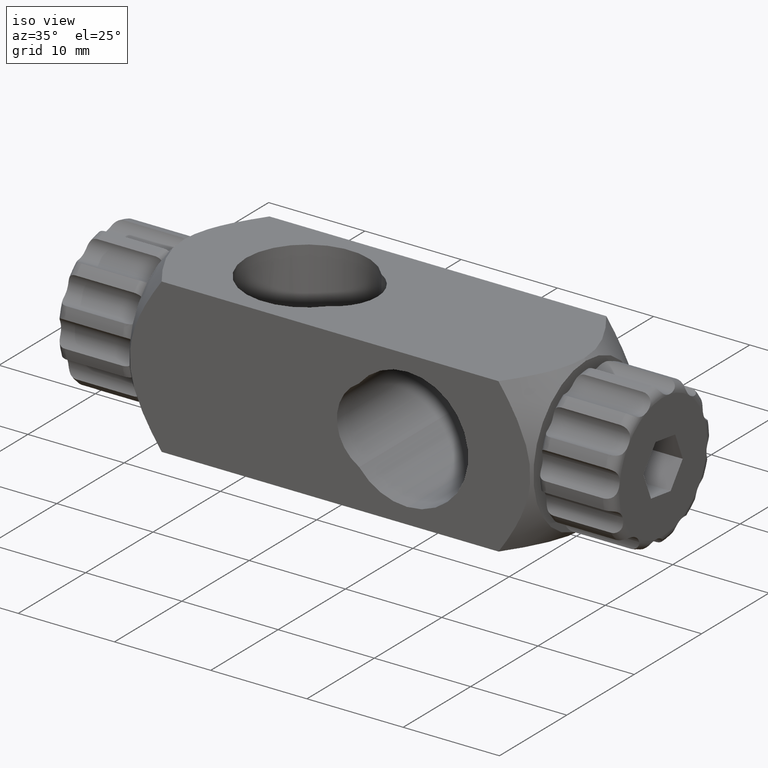
[diagram: clean part render]
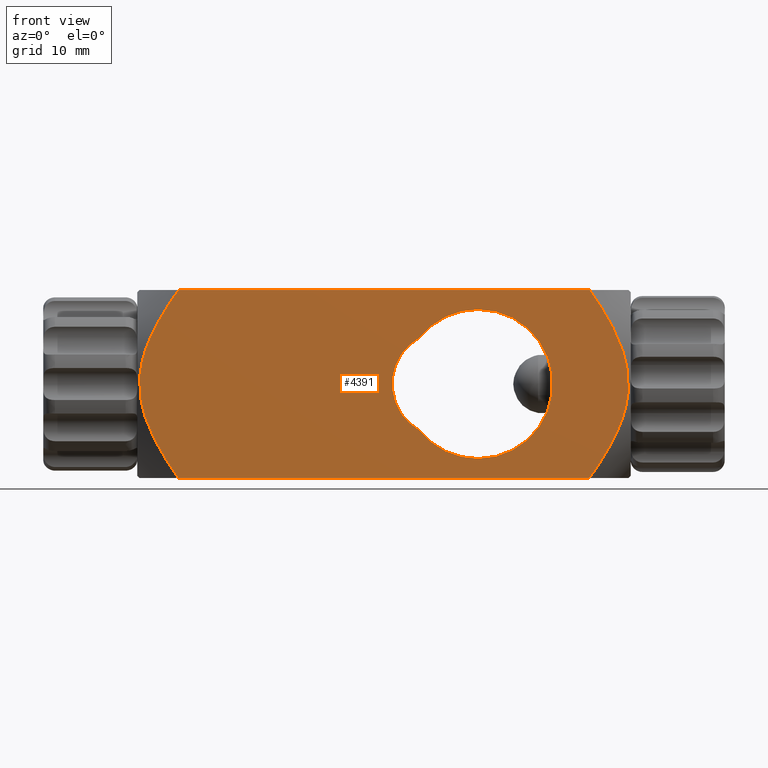
[diagram: tour spotlight — one face highlighted and labeled with its STEP entity id]
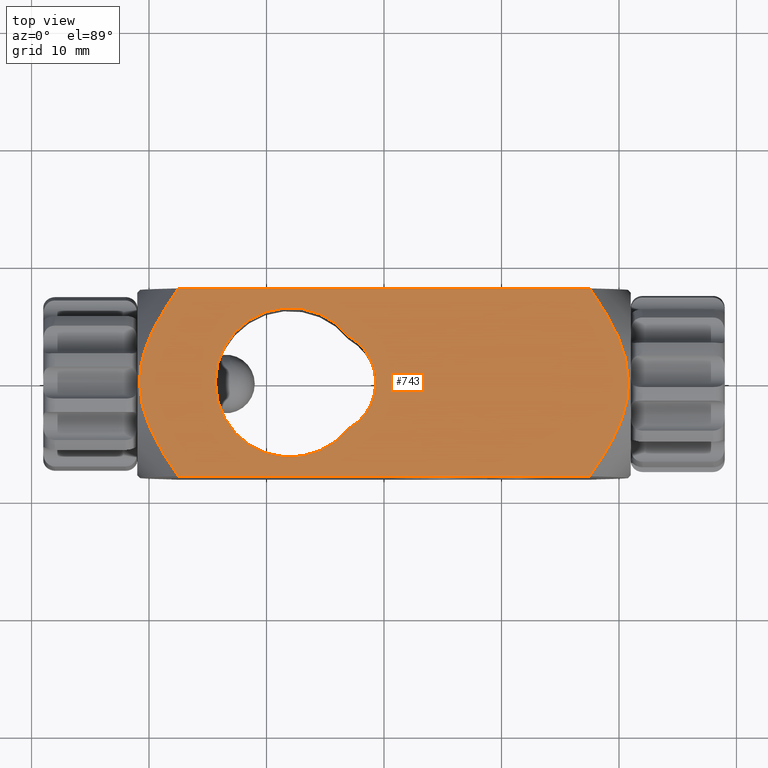
[diagram: tour spotlight — one face highlighted and labeled with its STEP entity id]
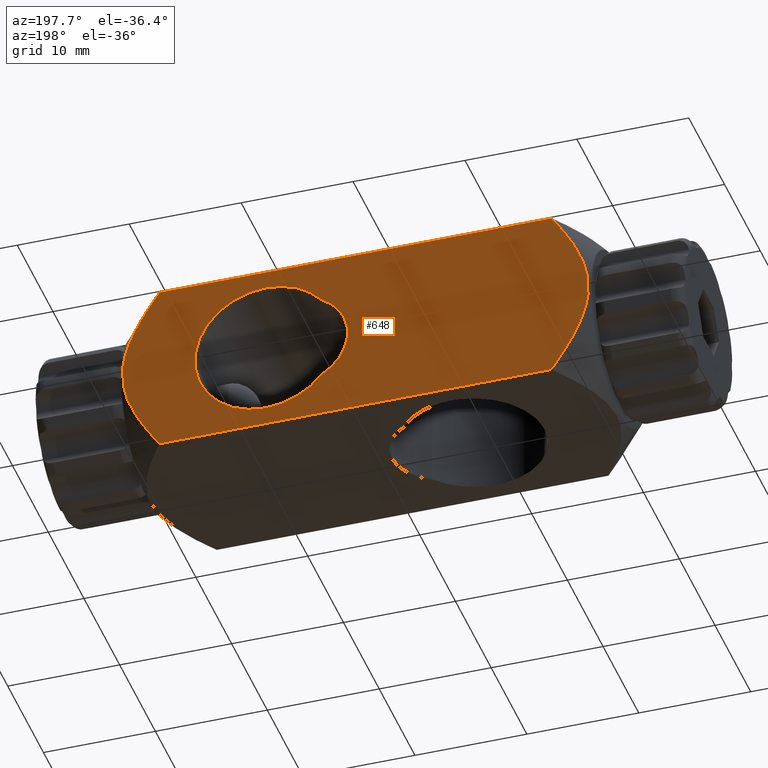
[diagram: tour spotlight — one face highlighted and labeled with its STEP entity id]
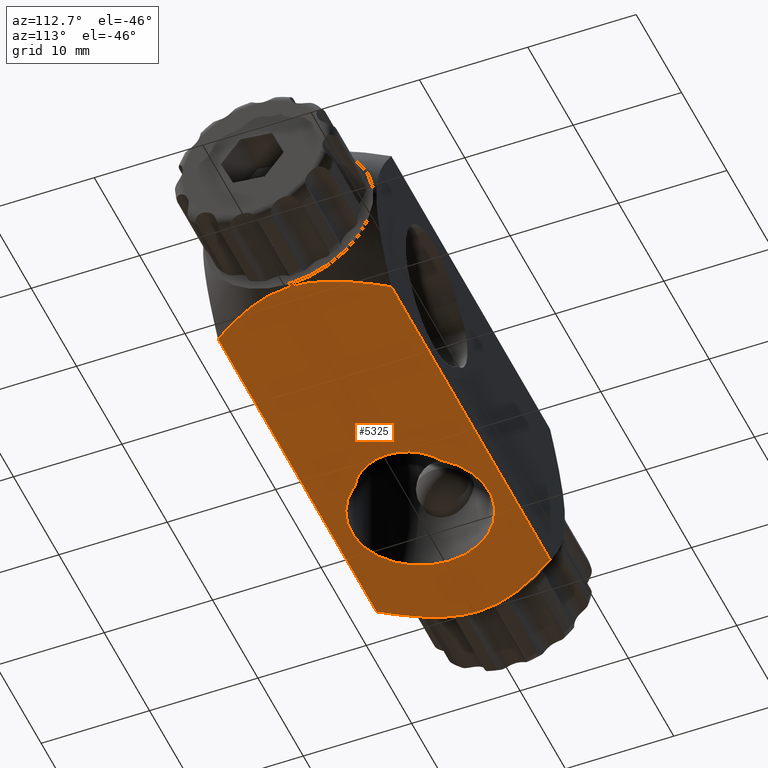
[diagram: tour spotlight — one face highlighted and labeled with its STEP entity id]
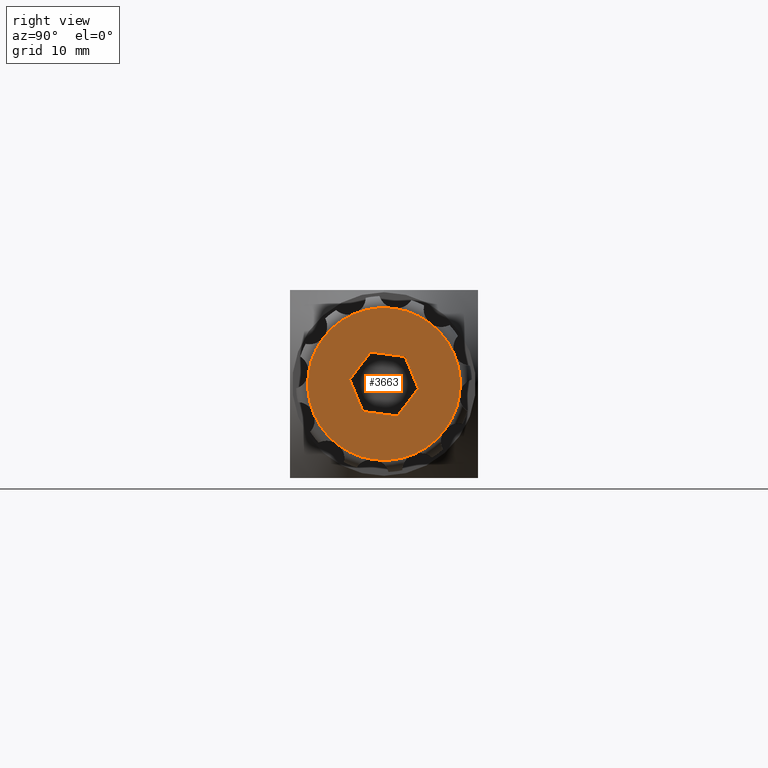
[diagram: tour spotlight — one face highlighted and labeled with its STEP entity id]
A machine part: a face-by-face anatomy tour. The part has 157 B-rep faces; the first image is the clean iso view, then the 5 largest visible faces are spotlighted one at a time (largest first), each with its STEP entity span.

Face 1 — front view, entity #4391. In plain terms, the highlighted planar face has unit normal (-0, 1, 0).
Definition (entity closure, byte-faithful):
#132 = CARTESIAN_POINT ( 'NONE',  ( 8.000000000000000000, -8.000000000000000000, 0.0000000000000000000 ) ) ;
#198 = CARTESIAN_POINT ( 'NONE',  ( 17.92043943690110600, -8.000000000000000000, 7.405408846177968100 ) ) ;
#217 = CARTESIAN_POINT ( 'NONE',  ( 20.33697051623881100, -7.999999999999998200, -2.886549292154272400 ) ) ;
#281 = VERTEX_POINT ( 'NONE', #908 ) ;
#393 = CIRCLE ( 'NONE', #3890, 6.349999999999999600 ) ;
#411 = CARTESIAN_POINT ( 'NONE',  ( -20.42562860089000100, -8.000000000000000000, 2.544972745423850700 ) ) ;
#430 = CARTESIAN_POINT ( 'NONE',  ( -20.61293202480144500, -8.000000000000001800, 1.835684253254701100 ) ) ;
#507 = EDGE_LOOP ( 'NONE', ( #3463, #3340, #1788, #4261 ) ) ;
#538 = AXIS2_PLACEMENT_3D ( 'NONE', #4014, #2173, #1740 ) ;
#623 = CARTESIAN_POINT ( 'NONE',  ( -17.50000000000000400, -8.000000000000001800, 8.000000000000001800 ) ) ;
#638 = CARTESIAN_POINT ( 'NONE',  ( 20.81342041344699500, -7.999999999999998200, 0.3728303006373250800 ) ) ;
#754 = EDGE_CURVE ( 'NONE', #5499, #2186, #4563, .T. ) ;
#784 = AXIS2_PLACEMENT_3D ( 'NONE', #5428, #3659, #5001 ) ;
#854 = CARTESIAN_POINT ( 'NONE',  ( -19.08432518912335500, -8.000000000000000000, 5.558985842700172600 ) ) ;
#871 = VERTEX_POINT ( 'NONE', #5400 ) ;
#881 = CARTESIAN_POINT ( 'NONE',  ( 17.50000000000000400, -8.000000000000001800, 8.000000000000001800 ) ) ;
#886 = CARTESIAN_POINT ( 'NONE',  ( -18.32977993607270400, -7.999999999999996400, -6.794100204240239200 ) ) ;
#892 = FACE_OUTER_BOUND ( 'NONE', #2541, .T. ) ;
#908 = CARTESIAN_POINT ( 'NONE',  ( -17.50000000000000400, -8.000000000000000000, -8.000000000000003600 ) ) ;
#985 = LINE ( 'NONE', #3646, #4485 ) ;
#992 = VECTOR ( 'NONE', #1989, 1000.000000000000000 ) ;
#1001 = DIRECTION ( 'NONE',  ( -1.000000000000000000, -0.0000000000000000000, -0.0000000000000000000 ) ) ;
#1063 = CARTESIAN_POINT ( 'NONE',  ( 20.69119034948053200, -8.000000000000000000, -1.450711989762702300 ) ) ;
#1134 = CARTESIAN_POINT ( 'NONE',  ( 17.92229514064222300, -8.000000000000000000, -7.402784484779529000 ) ) ;
#1222 = DIRECTION ( 'NONE',  ( 0.0000000000000000000, 0.0000000000000000000, 1.000000000000000000 ) ) ;
#1290 = CARTESIAN_POINT ( 'NONE',  ( -19.45350763172082500, -7.999999999999998200, -4.894535881156402400 ) ) ;
#1434 = AXIS2_PLACEMENT_3D ( 'NONE', #3650, #2746, #2309 ) ;
#1544 = CARTESIAN_POINT ( 'NONE',  ( 20.07322756702664200, -7.999999999999998200, -3.569191524466322800 ) ) ;
#1561 = CARTESIAN_POINT ( 'NONE',  ( 20.42562860088999700, -8.000000000000000000, 2.544972745423853800 ) ) ;
#1579 = CARTESIAN_POINT ( 'NONE',  ( 19.08432518912336600, -8.000000000000000000, 5.558985842700173500 ) ) ;
#1626 = B_SPLINE_CURVE_WITH_KNOTS ( 'NONE', 3,
 ( #2253, #2218, #4483, #854, #5439, #5401, #4011, #5880, #411, #430, #5378, #2653, #4537, #2670, #4033, #1780, #4946, #4963, #1737, #1290, #3614, #886, #4075, #4520 ),
 .UNSPECIFIED., .F., .F.,
 ( 4, 2, 2, 2, 2, 2, 2, 2, 2, 2, 2, 4 ),
 ( 0.03399603221189896600, 0.03618436325636750800, 0.03837269430083605600, 0.03946685982307032700, 0.04056102534530460500, 0.04165519086753888300, 0.04274935638977315300, 0.04384352191200743100, 0.04493768743424170200, 0.04712601847871025100, 0.04931434952317879900, 0.05150268056764734800 ),
 .UNSPECIFIED. ) ;
#1680 = CIRCLE ( 'NONE', #784, 4.500000000000000900 ) ;
#1735 = CARTESIAN_POINT ( 'NONE',  ( 8.000000000000000000, -8.000000000000000000, 0.0000000000000000000 ) ) ;
#1737 = CARTESIAN_POINT ( 'NONE',  ( -20.07322756702663800, -7.999999999999996400, -3.569191524466328100 ) ) ;
#1740 = DIRECTION ( 'NONE',  ( 0.0000000000000000000, 0.0000000000000000000, 1.000000000000000000 ) ) ;
#1780 = CARTESIAN_POINT ( 'NONE',  ( -20.69119034948052900, -7.999999999999998200, -1.450711989762704300 ) ) ;
#1788 = ORIENTED_EDGE ( 'NONE', *, *, #754, .T. ) ;
#1831 = EDGE_CURVE ( 'NONE', #5143, #1879, #4333, .T. ) ;
#1879 = VERTEX_POINT ( 'NONE', #623 ) ;
#1882 = CARTESIAN_POINT ( 'NONE',  ( 3.015625000000002700, -8.000000000000000000, -3.934273231408187000 ) ) ;
#1923 = B_SPLINE_CURVE_WITH_KNOTS ( 'NONE', 3,
 ( #2042, #1134, #4710, #5705, #4781, #1544, #217, #4253, #1063, #4306, #5639, #638, #1984, #5172, #3838, #1561, #3400, #2893, #3815, #5247, #1579, #2909, #198, #2004 ),
 .UNSPECIFIED., .F., .F.,
 ( 4, 2, 2, 2, 2, 2, 2, 2, 2, 2, 2, 4 ),
 ( 0.009068250966284784700, 0.01126049084664370300, 0.01345273072700262100, 0.01564497060736154100, 0.01674109054754099900, 0.01783721048772046000, 0.01893333042789991900, 0.02002945036807937700, 0.02112557030825883800, 0.02222169024843829700, 0.02441393012879720900, 0.02660617000915611900 ),
 .UNSPECIFIED. ) ;
#1936 = ORIENTED_EDGE ( 'NONE', *, *, #1831, .T. ) ;
#1984 = CARTESIAN_POINT ( 'NONE',  ( 20.78736702255115500, -8.000000000000000000, 0.7440030343107489900 ) ) ;
#1989 = DIRECTION ( 'NONE',  ( -1.000000000000000000, -0.0000000000000000000, -0.0000000000000000000 ) ) ;
#2004 = CARTESIAN_POINT ( 'NONE',  ( 17.50000000000000400, -8.000000000000001800, 8.000000000000001800 ) ) ;
#2042 = CARTESIAN_POINT ( 'NONE',  ( 17.50000000000000400, -8.000000000000000000, -8.000000000000003600 ) ) ;
#2135 = EDGE_CURVE ( 'NONE', #3603, #281, #985, .T. ) ;
#2173 = DIRECTION ( 'NONE',  ( 0.0000000000000000000, 1.000000000000000000, 0.0000000000000000000 ) ) ;
#2186 = VERTEX_POINT ( 'NONE', #1882 ) ;
#2218 = CARTESIAN_POINT ( 'NONE',  ( -17.92043943690110200, -7.999999999999998200, 7.405408846177965500 ) ) ;
#2253 = CARTESIAN_POINT ( 'NONE',  ( -17.50000000000000400, -8.000000000000001800, 8.000000000000001800 ) ) ;
#2309 = DIRECTION ( 'NONE',  ( 0.0000000000000000000, -1.084202172485504600E-016, 1.000000000000000000 ) ) ;
#2541 = EDGE_LOOP ( 'NONE', ( #1936, #4949, #3069, #5129 ) ) ;
#2653 = CARTESIAN_POINT ( 'NONE',  ( -20.78736702255114500, -8.000000000000001800, 0.7440030343107544300 ) ) ;
#2670 = CARTESIAN_POINT ( 'NONE',  ( -20.81399172713669200, -8.000000000000001800, -0.3603628882988950700 ) ) ;
#2746 = DIRECTION ( 'NONE',  ( -0.0000000000000000000, 1.000000000000000000, 1.084202172485504600E-016 ) ) ;
#2835 = DIRECTION ( 'NONE',  ( 0.0000000000000000000, 0.0000000000000000000, 1.000000000000000000 ) ) ;
#2859 = CARTESIAN_POINT ( 'NONE',  ( 8.000000000000000000, -8.000000000000000000, 6.349999999999999600 ) ) ;
#2893 = CARTESIAN_POINT ( 'NONE',  ( 20.05300170012581900, -7.999999999999998200, 3.585025002080009000 ) ) ;
#2909 = CARTESIAN_POINT ( 'NONE',  ( 18.32520749897511800, -8.000000000000001800, 6.800740932893627500 ) ) ;
#3059 = CARTESIAN_POINT ( 'NONE',  ( 17.50000000000000400, -8.000000000000000000, -8.000000000000003600 ) ) ;
#3069 = ORIENTED_EDGE ( 'NONE', *, *, #2135, .F. ) ;
#3334 = VERTEX_POINT ( 'NONE', #2859 ) ;
#3340 = ORIENTED_EDGE ( 'NONE', *, *, #4540, .T. ) ;
#3400 = CARTESIAN_POINT ( 'NONE',  ( 20.31220751485102500, -8.000000000000000000, 2.894467072397334500 ) ) ;
#3463 = ORIENTED_EDGE ( 'NONE', *, *, #3719, .T. ) ;
#3465 = DIRECTION ( 'NONE',  ( 0.0000000000000000000, 1.000000000000000000, 0.0000000000000000000 ) ) ;
#3493 = EDGE_CURVE ( 'NONE', #3603, #5143, #1923, .T. ) ;
#3603 = VERTEX_POINT ( 'NONE', #3059 ) ;
#3614 = CARTESIAN_POINT ( 'NONE',  ( -19.09602088434860100, -8.000000000000000000, -5.538997386591461200 ) ) ;
#3646 = CARTESIAN_POINT ( 'NONE',  ( 21.00000000000000000, -7.999999999999998200, -8.000000000000003600 ) ) ;
#3650 = CARTESIAN_POINT ( 'NONE',  ( 21.00000000000000000, -8.000000000000000000, 7.999999999999998200 ) ) ;
#3659 = DIRECTION ( 'NONE',  ( 0.0000000000000000000, 1.000000000000000000, 0.0000000000000000000 ) ) ;
#3719 = EDGE_CURVE ( 'NONE', #871, #3334, #5464, .T. ) ;
#3788 = DIRECTION ( 'NONE',  ( 0.0000000000000000000, 1.000000000000000000, 0.0000000000000000000 ) ) ;
#3815 = CARTESIAN_POINT ( 'NONE',  ( 19.90721175397872100, -7.999999999999998200, 3.925766671444826700 ) ) ;
#3838 = CARTESIAN_POINT ( 'NONE',  ( 20.61293202480145200, -8.000000000000001800, 1.835684253254705300 ) ) ;
#3890 = AXIS2_PLACEMENT_3D ( 'NONE', #132, #3788, #2835 ) ;
#4011 = CARTESIAN_POINT ( 'NONE',  ( -20.05300170012581500, -7.999999999999998200, 3.585025002080012100 ) ) ;
#4014 = CARTESIAN_POINT ( 'NONE',  ( 8.000000000000000000, -8.000000000000000000, 0.0000000000000000000 ) ) ;
#4033 = CARTESIAN_POINT ( 'NONE',  ( -20.78897169824392700, -7.999999999999998200, -0.7250275231877975100 ) ) ;
#4075 = CARTESIAN_POINT ( 'NONE',  ( -17.92229514064221600, -8.000000000000000000, -7.402784484779530800 ) ) ;
#4151 = PLANE ( 'NONE',  #1434 ) ;
#4253 = CARTESIAN_POINT ( 'NONE',  ( 20.61811455882615400, -7.999999999999996400, -1.813016830848960900 ) ) ;
#4261 = ORIENTED_EDGE ( 'NONE', *, *, #5008, .T. ) ;
#4306 = CARTESIAN_POINT ( 'NONE',  ( 20.78897169824392700, -7.999999999999994700, -0.7250275231877945100 ) ) ;
#4330 = EDGE_CURVE ( 'NONE', #1879, #281, #1626, .T. ) ;
#4333 = LINE ( 'NONE', #4625, #992 ) ;
#4391 = ADVANCED_FACE ( 'NONE', ( #5396, #892 ), #4151, .F. ) ;
#4483 = CARTESIAN_POINT ( 'NONE',  ( -18.32520749897511400, -7.999999999999998200, 6.800740932893625700 ) ) ;
#4485 = VECTOR ( 'NONE', #1001, 1000.000000000000000 ) ;
#4520 = CARTESIAN_POINT ( 'NONE',  ( -17.50000000000000400, -8.000000000000000000, -8.000000000000003600 ) ) ;
#4537 = CARTESIAN_POINT ( 'NONE',  ( -20.81342041344699500, -8.000000000000000000, 0.3728303006373195300 ) ) ;
#4540 = EDGE_CURVE ( 'NONE', #3334, #5499, #393, .T. ) ;
#4563 = CIRCLE ( 'NONE', #5936, 6.349999999999999600 ) ;
#4625 = CARTESIAN_POINT ( 'NONE',  ( 21.00000000000000000, -8.000000000000000000, 7.999999999999998200 ) ) ;
#4710 = CARTESIAN_POINT ( 'NONE',  ( 18.32977993607270400, -8.000000000000000000, -6.794100204240233900 ) ) ;
#4781 = CARTESIAN_POINT ( 'NONE',  ( 19.45350763172081800, -7.999999999999998200, -4.894535881156395300 ) ) ;
#4946 = CARTESIAN_POINT ( 'NONE',  ( -20.61811455882615400, -8.000000000000000000, -1.813016830848963600 ) ) ;
#4949 = ORIENTED_EDGE ( 'NONE', *, *, #4330, .T. ) ;
#4963 = CARTESIAN_POINT ( 'NONE',  ( -20.33697051623881100, -7.999999999999996400, -2.886549292154276400 ) ) ;
#5001 = DIRECTION ( 'NONE',  ( 0.0000000000000000000, 0.0000000000000000000, 1.000000000000000000 ) ) ;
#5008 = EDGE_CURVE ( 'NONE', #2186, #871, #1680, .T. ) ;
#5129 = ORIENTED_EDGE ( 'NONE', *, *, #3493, .T. ) ;
#5143 = VERTEX_POINT ( 'NONE', #881 ) ;
#5172 = CARTESIAN_POINT ( 'NONE',  ( 20.68678732647624600, -8.000000000000000000, 1.475883045133427300 ) ) ;
#5247 = CARTESIAN_POINT ( 'NONE',  ( 19.43907390183379700, -8.000000000000000000, 4.922155278878841000 ) ) ;
#5360 = CARTESIAN_POINT ( 'NONE',  ( 8.000000000000000000, -8.000000000000000000, -6.349999999999999600 ) ) ;
#5378 = CARTESIAN_POINT ( 'NONE',  ( -20.68678732647623900, -7.999999999999998200, 1.475883045133432800 ) ) ;
#5396 = FACE_BOUND ( 'NONE', #507, .T. ) ;
#5400 = CARTESIAN_POINT ( 'NONE',  ( 3.015625000000001800, -8.000000000000000000, 3.934273231408186100 ) ) ;
#5401 = CARTESIAN_POINT ( 'NONE',  ( -19.90721175397871400, -8.000000000000000000, 3.925766671444824100 ) ) ;
#5428 = CARTESIAN_POINT ( 'NONE',  ( 5.200000000000000200, -8.000000000000000000, 0.0000000000000000000 ) ) ;
#5439 = CARTESIAN_POINT ( 'NONE',  ( -19.43907390183380100, -8.000000000000000000, 4.922155278878834700 ) ) ;
#5464 = CIRCLE ( 'NONE', #538, 6.349999999999999600 ) ;
#5499 = VERTEX_POINT ( 'NONE', #5360 ) ;
#5639 = CARTESIAN_POINT ( 'NONE',  ( 20.81399172713669900, -8.000000000000000000, -0.3603628882988899600 ) ) ;
#5705 = CARTESIAN_POINT ( 'NONE',  ( 19.09602088434860400, -7.999999999999998200, -5.538997386591452400 ) ) ;
#5880 = CARTESIAN_POINT ( 'NONE',  ( -20.31220751485102100, -8.000000000000000000, 2.894467072397336200 ) ) ;
#5936 = AXIS2_PLACEMENT_3D ( 'NONE', #1735, #3465, #1222 ) ;

Face 2 — top view, entity #743. In plain terms, the highlighted planar face has unit normal (0, 0, -1).
Definition (entity closure, byte-faithful):
#141 = ORIENTED_EDGE ( 'NONE', *, *, #162, .T. ) ;
#158 = EDGE_CURVE ( 'NONE', #611, #4050, #5138, .T. ) ;
#159 = CARTESIAN_POINT ( 'NONE',  ( -0.7000000000000009500, -4.616274048041198100E-015, 7.999999999999998200 ) ) ;
#162 = EDGE_CURVE ( 'NONE', #2991, #1879, #2255, .T. ) ;
#233 = CARTESIAN_POINT ( 'NONE',  ( 20.81370849898476600, -6.388547273390590200E-016, 7.999999999999998200 ) ) ;
#266 = CARTESIAN_POINT ( 'NONE',  ( 20.61701652224634900, -1.817904995477410700, 7.999999999999998200 ) ) ;
#279 = CARTESIAN_POINT ( 'NONE',  ( 19.44030328246086700, 4.919881602705788600, 8.000000000000000000 ) ) ;
#437 = CARTESIAN_POINT ( 'NONE',  ( -18.32920172496067900, -6.794962145850640000, 8.000000000000000000 ) ) ;
#557 = EDGE_CURVE ( 'NONE', #4050, #1874, #5358, .T. ) ;
#611 = VERTEX_POINT ( 'NONE', #4125 ) ;
#623 = CARTESIAN_POINT ( 'NONE',  ( -17.50000000000000400, -8.000000000000001800, 8.000000000000001800 ) ) ;
#643 = CARTESIAN_POINT ( 'NONE',  ( -19.08536439680609900, 5.557202719139787000, 8.000000000000001800 ) ) ;
#676 = CARTESIAN_POINT ( 'NONE',  ( 20.81370849898476600, -6.388547273390590200E-016, 7.999999999999998200 ) ) ;
#683 = CARTESIAN_POINT ( 'NONE',  ( -20.31356114242262800, 2.890522693892555700, 8.000000000000000000 ) ) ;
#698 = CARTESIAN_POINT ( 'NONE',  ( 20.69026019974022300, -1.455835578216780700, 7.999999999999998200 ) ) ;
#743 = ADVANCED_FACE ( 'NONE', ( #5782, #4202 ), #4152, .F. ) ;
#796 = VERTEX_POINT ( 'NONE', #3079 ) ;
#827 = CARTESIAN_POINT ( 'NONE',  ( -20.81370849898476600, -6.388547273390590200E-016, 7.999999999999998200 ) ) ;
#835 = CARTESIAN_POINT ( 'NONE',  ( -20.81370849898477000, -0.3663150559988506100, 7.999999999999998200 ) ) ;
#881 = CARTESIAN_POINT ( 'NONE',  ( 17.50000000000000400, -8.000000000000001800, 8.000000000000001800 ) ) ;
#936 = ORIENTED_EDGE ( 'NONE', *, *, #4746, .T. ) ;
#992 = VECTOR ( 'NONE', #1989, 1000.000000000000000 ) ;
#1106 = CARTESIAN_POINT ( 'NONE',  ( -20.42692407732127400, 2.540744656162058100, 8.000000000000000000 ) ) ;
#1140 = CARTESIAN_POINT ( 'NONE',  ( -20.81370849898476600, -6.388547273390590200E-016, 7.999999999999998200 ) ) ;
#1193 = CARTESIAN_POINT ( 'NONE',  ( 17.92073733177074900, 7.404987559213145300, 8.000000000000000000 ) ) ;
#1205 = EDGE_CURVE ( 'NONE', #796, #2991, #5496, .T. ) ;
#1228 = CARTESIAN_POINT ( 'NONE',  ( -20.81370849898476600, -6.388547273390590200E-016, 7.999999999999998200 ) ) ;
#1326 = EDGE_CURVE ( 'NONE', #5143, #2080, #2687, .T. ) ;
#1340 = VECTOR ( 'NONE', #2821, 1000.000000000000000 ) ;
#1376 = CARTESIAN_POINT ( 'NONE',  ( -19.45227572583574000, -4.896825401250437100, 7.999999999999998200 ) ) ;
#1465 = DIRECTION ( 'NONE',  ( 0.0000000000000000000, 1.000000000000000000, 1.084202172485504600E-016 ) ) ;
#1548 = CIRCLE ( 'NONE', #5279, 4.499999999999999100 ) ;
#1580 = CARTESIAN_POINT ( 'NONE',  ( 17.50000000000000400, -8.000000000000001800, 8.000000000000001800 ) ) ;
#1655 = CARTESIAN_POINT ( 'NONE',  ( 20.31356114242262500, 2.890522693892559200, 8.000000000000000000 ) ) ;
#1681 = ORIENTED_EDGE ( 'NONE', *, *, #158, .F. ) ;
#1705 = CARTESIAN_POINT ( 'NONE',  ( 19.08536439680609600, 5.557202719139794100, 8.000000000000000000 ) ) ;
#1831 = EDGE_CURVE ( 'NONE', #5143, #1879, #4333, .T. ) ;
#1842 = LINE ( 'NONE', #3635, #1340 ) ;
#1874 = VERTEX_POINT ( 'NONE', #159 ) ;
#1879 = VERTEX_POINT ( 'NONE', #623 ) ;
#1989 = DIRECTION ( 'NONE',  ( -1.000000000000000000, -0.0000000000000000000, -0.0000000000000000000 ) ) ;
#2011 = CARTESIAN_POINT ( 'NONE',  ( -20.61402319011282100, 1.830865816188890000, 8.000000000000000000 ) ) ;
#2043 = CARTESIAN_POINT ( 'NONE',  ( 20.78844343409576500, -0.7307012536123644900, 7.999999999999998200 ) ) ;
#2047 = CARTESIAN_POINT ( 'NONE',  ( -20.05440168618099500, 3.581629824740156600, 8.000000000000000000 ) ) ;
#2080 = VERTEX_POINT ( 'NONE', #4982 ) ;
#2140 = CARTESIAN_POINT ( 'NONE',  ( -20.69026019974021900, -1.455835578216785600, 7.999999999999996400 ) ) ;
#2145 = CARTESIAN_POINT ( 'NONE',  ( 20.05440168618099200, 3.581629824740160600, 8.000000000000000000 ) ) ;
#2255 = B_SPLINE_CURVE_WITH_KNOTS ( 'NONE', 3,
 ( #1228, #835, #2569, #2140, #3047, #3492, #4544, #1376, #3172, #437, #4510, #2258 ),
 .UNSPECIFIED., .F., .F.,
 ( 4, 2, 2, 2, 2, 4 ),
 ( 0.04275555840161152800, 0.04384894867236600900, 0.04494233894312048300, 0.04712911948462944500, 0.04931590002613840000, 0.05150268056764736200 ),
 .UNSPECIFIED. ) ;
#2258 = CARTESIAN_POINT ( 'NONE',  ( -17.50000000000000400, -8.000000000000001800, 8.000000000000001800 ) ) ;
#2375 = AXIS2_PLACEMENT_3D ( 'NONE', #4859, #5316, #5781 ) ;
#2436 = B_SPLINE_CURVE_WITH_KNOTS ( 'NONE', 3,
 ( #233, #4737, #3916, #5306, #4404, #5809, #1655, #2145, #2623, #279, #1705, #3503, #1193, #4869 ),
 .UNSPECIFIED., .F., .F.,
 ( 4, 2, 2, 2, 2, 2, 4 ),
 ( 0.01783099739773806900, 0.01892789397416532600, 0.02002479055059257900, 0.02112168712701983600, 0.02221858370344709200, 0.02441237685630160200, 0.02660617000915611200 ),
 .UNSPECIFIED. ) ;
#2519 = CARTESIAN_POINT ( 'NONE',  ( 19.45227572583574000, -4.896825401250432600, 7.999999999999998200 ) ) ;
#2569 = CARTESIAN_POINT ( 'NONE',  ( -20.78844343409576100, -0.7307012536123698200, 8.000000000000000000 ) ) ;
#2591 = EDGE_CURVE ( 'NONE', #1874, #611, #1548, .T. ) ;
#2623 = CARTESIAN_POINT ( 'NONE',  ( 19.90858681300051100, 3.922667415172811400, 8.000000000000001800 ) ) ;
#2687 = B_SPLINE_CURVE_WITH_KNOTS ( 'NONE', 3,
 ( #1580, #3422, #4808, #4765, #2519, #3401, #4782, #266, #698, #2043, #3441, #676 ),
 .UNSPECIFIED., .F., .F.,
 ( 4, 2, 2, 2, 2, 4 ),
 ( 0.009068250966284779500, 0.01125893757414810200, 0.01344962418201142400, 0.01564031078987474600, 0.01673565409380641000, 0.01783099739773806900 ),
 .UNSPECIFIED. ) ;
#2732 = VERTEX_POINT ( 'NONE', #5604 ) ;
#2740 = CARTESIAN_POINT ( 'NONE',  ( -5.200000000000000200, -4.616274048041198100E-015, 7.999999999999998200 ) ) ;
#2764 = DIRECTION ( 'NONE',  ( 0.0000000000000000000, 1.084202172485504600E-016, -1.000000000000000000 ) ) ;
#2821 = DIRECTION ( 'NONE',  ( -1.000000000000000000, -0.0000000000000000000, -0.0000000000000000000 ) ) ;
#2857 = EDGE_LOOP ( 'NONE', ( #1681, #5134, #3723 ) ) ;
#2939 = CARTESIAN_POINT ( 'NONE',  ( -17.50000000000000700, 8.000000000000000000, 8.000000000000000000 ) ) ;
#2991 = VERTEX_POINT ( 'NONE', #827 ) ;
#3047 = CARTESIAN_POINT ( 'NONE',  ( -20.61701652224634200, -1.817904995477410900, 7.999999999999998200 ) ) ;
#3079 = CARTESIAN_POINT ( 'NONE',  ( -17.50000000000000700, 8.000000000000000000, 8.000000000000000000 ) ) ;
#3172 = CARTESIAN_POINT ( 'NONE',  ( -19.09497030133665200, -5.540803229082471600, 8.000000000000000000 ) ) ;
#3217 = DIRECTION ( 'NONE',  ( 1.000000000000000000, 0.0000000000000000000, 0.0000000000000000000 ) ) ;
#3290 = ORIENTED_EDGE ( 'NONE', *, *, #3337, .T. ) ;
#3337 = EDGE_CURVE ( 'NONE', #2732, #796, #1842, .T. ) ;
#3401 = CARTESIAN_POINT ( 'NONE',  ( 20.07182435414942400, -3.572536052423589400, 8.000000000000000000 ) ) ;
#3422 = CARTESIAN_POINT ( 'NONE',  ( 17.92199593094676400, -7.403207631188844400, 8.000000000000000000 ) ) ;
#3428 = CARTESIAN_POINT ( 'NONE',  ( -17.92073733177075600, 7.404987559213143600, 8.000000000000000000 ) ) ;
#3441 = CARTESIAN_POINT ( 'NONE',  ( 20.81370849898476600, -0.3663150559988450600, 8.000000000000000000 ) ) ;
#3460 = AXIS2_PLACEMENT_3D ( 'NONE', #2740, #5938, #3217 ) ;
#3492 = CARTESIAN_POINT ( 'NONE',  ( -20.33557784473395100, -2.890462979310099500, 8.000000000000000000 ) ) ;
#3503 = CARTESIAN_POINT ( 'NONE',  ( 18.32578179175611400, 6.799884536330023500, 8.000000000000001800 ) ) ;
#3635 = CARTESIAN_POINT ( 'NONE',  ( 21.00000000000000000, 8.000000000000000000, 8.000000000000000000 ) ) ;
#3654 = CARTESIAN_POINT ( 'NONE',  ( -5.200000000000000200, -4.616274048041198100E-015, 7.999999999999998200 ) ) ;
#3674 = DIRECTION ( 'NONE',  ( 0.0000000000000000000, 0.0000000000000000000, 1.000000000000000000 ) ) ;
#3722 = CARTESIAN_POINT ( 'NONE',  ( 21.00000000000000000, 8.000000000000000000, 8.000000000000000000 ) ) ;
#3723 = ORIENTED_EDGE ( 'NONE', *, *, #557, .F. ) ;
#3765 = AXIS2_PLACEMENT_3D ( 'NONE', #3722, #2764, #1465 ) ;
#3824 = CARTESIAN_POINT ( 'NONE',  ( -19.90858681300050400, 3.922667415172802900, 7.999999999999998200 ) ) ;
#3866 = CARTESIAN_POINT ( 'NONE',  ( -20.81370849898477000, 0.3668345160614183700, 7.999999999999998200 ) ) ;
#3916 = CARTESIAN_POINT ( 'NONE',  ( 20.78791525579183400, 0.7382374763385347600, 8.000000000000000000 ) ) ;
#4050 = VERTEX_POINT ( 'NONE', #4174 ) ;
#4088 = ORIENTED_EDGE ( 'NONE', *, *, #1205, .T. ) ;
#4125 = CARTESIAN_POINT ( 'NONE',  ( -3.015625000000005300, 3.934273231408183000, 7.999999999999998200 ) ) ;
#4152 = PLANE ( 'NONE',  #3765 ) ;
#4174 = CARTESIAN_POINT ( 'NONE',  ( -3.015625000000004400, -3.934273231408192300, 7.999999999999998200 ) ) ;
#4202 = FACE_OUTER_BOUND ( 'NONE', #4623, .T. ) ;
#4312 = CARTESIAN_POINT ( 'NONE',  ( -18.32578179175612100, 6.799884536330013800, 7.999999999999998200 ) ) ;
#4333 = LINE ( 'NONE', #4625, #992 ) ;
#4361 = CARTESIAN_POINT ( 'NONE',  ( -19.44030328246087800, 4.919881602705780600, 8.000000000000000000 ) ) ;
#4404 = CARTESIAN_POINT ( 'NONE',  ( 20.61402319011282500, 1.830865816188891300, 8.000000000000000000 ) ) ;
#4446 = ORIENTED_EDGE ( 'NONE', *, *, #1326, .T. ) ;
#4510 = CARTESIAN_POINT ( 'NONE',  ( -17.92199593094676800, -7.403207631188847900, 8.000000000000000000 ) ) ;
#4544 = CARTESIAN_POINT ( 'NONE',  ( -20.07182435414942000, -3.572536052423591600, 8.000000000000000000 ) ) ;
#4623 = EDGE_LOOP ( 'NONE', ( #3290, #4088, #141, #5634, #4446, #936 ) ) ;
#4625 = CARTESIAN_POINT ( 'NONE',  ( 21.00000000000000000, -8.000000000000000000, 7.999999999999998200 ) ) ;
#4737 = CARTESIAN_POINT ( 'NONE',  ( 20.81370849898477000, 0.3668345160614234200, 8.000000000000001800 ) ) ;
#4746 = EDGE_CURVE ( 'NONE', #2080, #2732, #2436, .T. ) ;
#4765 = CARTESIAN_POINT ( 'NONE',  ( 19.09497030133664100, -5.540803229082461800, 7.999999999999996400 ) ) ;
#4782 = CARTESIAN_POINT ( 'NONE',  ( 20.33557784473395100, -2.890462979310098200, 7.999999999999996400 ) ) ;
#4808 = CARTESIAN_POINT ( 'NONE',  ( 18.32920172496068600, -6.794962145850632900, 7.999999999999998200 ) ) ;
#4859 = CARTESIAN_POINT ( 'NONE',  ( -8.000000000000000000, -4.959040015105592400E-015, 7.999999999999998200 ) ) ;
#4869 = CARTESIAN_POINT ( 'NONE',  ( 17.50000000000000400, 8.000000000000000000, 8.000000000000003600 ) ) ;
#4982 = CARTESIAN_POINT ( 'NONE',  ( 20.81370849898476600, -6.388547273390590200E-016, 7.999999999999998200 ) ) ;
#5134 = ORIENTED_EDGE ( 'NONE', *, *, #2591, .F. ) ;
#5138 = CIRCLE ( 'NONE', #2375, 6.349999999999997900 ) ;
#5143 = VERTEX_POINT ( 'NONE', #881 ) ;
#5230 = CARTESIAN_POINT ( 'NONE',  ( -20.78791525579183700, 0.7382374763385266500, 8.000000000000001800 ) ) ;
#5279 = AXIS2_PLACEMENT_3D ( 'NONE', #3654, #3674, #5458 ) ;
#5306 = CARTESIAN_POINT ( 'NONE',  ( 20.68773215841695300, 1.470757925852254500, 7.999999999999998200 ) ) ;
#5316 = DIRECTION ( 'NONE',  ( 0.0000000000000000000, 0.0000000000000000000, 1.000000000000000000 ) ) ;
#5358 = CIRCLE ( 'NONE', #3460, 4.499999999999999100 ) ;
#5458 = DIRECTION ( 'NONE',  ( 1.000000000000000000, 0.0000000000000000000, 0.0000000000000000000 ) ) ;
#5496 = B_SPLINE_CURVE_WITH_KNOTS ( 'NONE', 3,
 ( #2939, #3428, #4312, #643, #4361, #3824, #2047, #683, #1106, #2011, #5690, #5230, #3866, #1140 ),
 .UNSPECIFIED., .F., .F.,
 ( 4, 2, 2, 2, 2, 2, 4 ),
 ( 0.03399603221189897300, 0.03618591375932711500, 0.03837579530675525700, 0.03947073608046932500, 0.04056567685418339300, 0.04166061762789746000, 0.04275555840161152800 ),
 .UNSPECIFIED. ) ;
#5604 = CARTESIAN_POINT ( 'NONE',  ( 17.50000000000000400, 8.000000000000000000, 8.000000000000003600 ) ) ;
#5634 = ORIENTED_EDGE ( 'NONE', *, *, #1831, .F. ) ;
#5690 = CARTESIAN_POINT ( 'NONE',  ( -20.68773215841694900, 1.470757925852247000, 8.000000000000000000 ) ) ;
#5781 = DIRECTION ( 'NONE',  ( 1.000000000000000000, 0.0000000000000000000, 0.0000000000000000000 ) ) ;
#5782 = FACE_BOUND ( 'NONE', #2857, .T. ) ;
#5809 = CARTESIAN_POINT ( 'NONE',  ( 20.42692407732127800, 2.540744656162059900, 8.000000000000000000 ) ) ;
#5938 = DIRECTION ( 'NONE',  ( 0.0000000000000000000, 0.0000000000000000000, 1.000000000000000000 ) ) ;

Face 3 — auxiliary view, entity #648. In plain terms, the highlighted planar face has unit normal (0, -1, 0).
Definition (entity closure, byte-faithful):
#71 = DIRECTION ( 'NONE',  ( 0.0000000000000000000, 1.000000000000000000, 0.0000000000000000000 ) ) ;
#190 = EDGE_LOOP ( 'NONE', ( #4602, #2689, #318, #2696 ) ) ;
#259 = DIRECTION ( 'NONE',  ( 0.0000000000000000000, 0.0000000000000000000, 1.000000000000000000 ) ) ;
#271 = EDGE_LOOP ( 'NONE', ( #4609, #2232, #2028, #803 ) ) ;
#274 = CARTESIAN_POINT ( 'NONE',  ( -19.45350763172081800, 8.000000000000000000, -4.894535881156399700 ) ) ;
#280 = CARTESIAN_POINT ( 'NONE',  ( 17.92043943690110900, 8.000000000000000000, 7.405408846177966400 ) ) ;
#300 = CARTESIAN_POINT ( 'NONE',  ( 20.78736702255114800, 7.999999999999998200, 0.7440030343107397700 ) ) ;
#318 = ORIENTED_EDGE ( 'NONE', *, *, #3410, .F. ) ;
#320 = CARTESIAN_POINT ( 'NONE',  ( 20.81399172713669200, 8.000000000000001800, -0.3603628882989007900 ) ) ;
#352 = FACE_OUTER_BOUND ( 'NONE', #271, .T. ) ;
#390 = VERTEX_POINT ( 'NONE', #5239 ) ;
#498 = VERTEX_POINT ( 'NONE', #824 ) ;
#614 = AXIS2_PLACEMENT_3D ( 'NONE', #2471, #2924, #259 ) ;
#648 = ADVANCED_FACE ( 'NONE', ( #4932, #352 ), #4105, .F. ) ;
#682 = CARTESIAN_POINT ( 'NONE',  ( -20.61811455882615400, 8.000000000000001800, -1.813016830848962700 ) ) ;
#726 = CARTESIAN_POINT ( 'NONE',  ( -17.92229514064221600, 8.000000000000000000, -7.402784484779526300 ) ) ;
#765 = CARTESIAN_POINT ( 'NONE',  ( 19.45350763172082200, 8.000000000000000000, -4.894535881156404100 ) ) ;
#788 = CARTESIAN_POINT ( 'NONE',  ( 19.08432518912336200, 7.999999999999998200, 5.558985842700174400 ) ) ;
#796 = VERTEX_POINT ( 'NONE', #3079 ) ;
#803 = ORIENTED_EDGE ( 'NONE', *, *, #5846, .T. ) ;
#824 = CARTESIAN_POINT ( 'NONE',  ( 17.50000000000000400, 8.000000000000000000, -8.000000000000000000 ) ) ;
#829 = B_SPLINE_CURVE_WITH_KNOTS ( 'NONE', 3,
 ( #4825, #280, #2127, #788, #5744, #3035, #3505, #4368, #3057, #5287, #1658, #300, #3014, #320, #5771, #1639, #3483, #3439, #3459, #765, #2107, #3937, #1218, #4408 ),
 .UNSPECIFIED., .F., .F.,
 ( 4, 2, 2, 2, 2, 2, 2, 2, 2, 2, 2, 4 ),
 ( 0.03399603221189898700, 0.03618436325636753500, 0.03837269430083607700, 0.03946685982307035500, 0.04056102534530463300, 0.04165519086753890300, 0.04274935638977318100, 0.04384352191200745900, 0.04493768743424173000, 0.04712601847871028500, 0.04931434952317883400, 0.05150268056764738300 ),
 .UNSPECIFIED. ) ;
#840 = VECTOR ( 'NONE', #2951, 1000.000000000000000 ) ;
#1110 = AXIS2_PLACEMENT_3D ( 'NONE', #1893, #71, #5354 ) ;
#1209 = CARTESIAN_POINT ( 'NONE',  ( -20.33697051623881100, 7.999999999999998200, -2.886549292154275000 ) ) ;
#1218 = CARTESIAN_POINT ( 'NONE',  ( 17.92229514064222000, 8.000000000000001800, -7.402784484779531700 ) ) ;
#1229 = CARTESIAN_POINT ( 'NONE',  ( -18.32520749897511400, 8.000000000000000000, 6.800740932893618600 ) ) ;
#1340 = VECTOR ( 'NONE', #2821, 1000.000000000000000 ) ;
#1381 = CARTESIAN_POINT ( 'NONE',  ( 21.00000000000000000, 8.000000000000000000, 8.000000000000000000 ) ) ;
#1392 = CARTESIAN_POINT ( 'NONE',  ( 8.000000000000000000, 8.000000000000000000, 6.349999999999999600 ) ) ;
#1639 = CARTESIAN_POINT ( 'NONE',  ( 20.69119034948052200, 7.999999999999998200, -1.450711989762717000 ) ) ;
#1649 = CARTESIAN_POINT ( 'NONE',  ( -18.32977993607271100, 8.000000000000000000, -6.794100204240233900 ) ) ;
#1658 = CARTESIAN_POINT ( 'NONE',  ( 20.68678732647624900, 8.000000000000000000, 1.475883045133419900 ) ) ;
#1674 = CARTESIAN_POINT ( 'NONE',  ( -20.07322756702664500, 8.000000000000001800, -3.569191524466325000 ) ) ;
#1697 = CARTESIAN_POINT ( 'NONE',  ( 3.015625000000002700, 8.000000000000000000, -3.934273231408187000 ) ) ;
#1776 = LINE ( 'NONE', #2971, #840 ) ;
#1842 = LINE ( 'NONE', #3635, #1340 ) ;
#1893 = CARTESIAN_POINT ( 'NONE',  ( 8.000000000000000000, 8.000000000000000000, 0.0000000000000000000 ) ) ;
#1907 = CIRCLE ( 'NONE', #1110, 6.349999999999999600 ) ;
#1924 = VERTEX_POINT ( 'NONE', #1392 ) ;
#2028 = ORIENTED_EDGE ( 'NONE', *, *, #3337, .F. ) ;
#2073 = CARTESIAN_POINT ( 'NONE',  ( -17.50000000000000700, 8.000000000000000000, 8.000000000000000000 ) ) ;
#2107 = CARTESIAN_POINT ( 'NONE',  ( 19.09602088434860100, 8.000000000000001800, -5.538997386591455900 ) ) ;
#2115 = AXIS2_PLACEMENT_3D ( 'NONE', #4923, #3098, #3552 ) ;
#2117 = CARTESIAN_POINT ( 'NONE',  ( -20.81399172713669900, 8.000000000000000000, -0.3603628882988952300 ) ) ;
#2127 = CARTESIAN_POINT ( 'NONE',  ( 18.32520749897511400, 8.000000000000000000, 6.800740932893623900 ) ) ;
#2141 = CARTESIAN_POINT ( 'NONE',  ( -20.78736702255115200, 8.000000000000000000, 0.7440030343107429900 ) ) ;
#2157 = CARTESIAN_POINT ( 'NONE',  ( -17.92043943690110200, 8.000000000000001800, 7.405408846177962800 ) ) ;
#2232 = ORIENTED_EDGE ( 'NONE', *, *, #5922, .T. ) ;
#2471 = CARTESIAN_POINT ( 'NONE',  ( 8.000000000000000000, 8.000000000000000000, 0.0000000000000000000 ) ) ;
#2517 = CARTESIAN_POINT ( 'NONE',  ( 3.015625000000001800, 8.000000000000000000, 3.934273231408186100 ) ) ;
#2571 = CARTESIAN_POINT ( 'NONE',  ( -17.50000000000000400, 8.000000000000000000, -8.000000000000003600 ) ) ;
#2616 = CARTESIAN_POINT ( 'NONE',  ( -20.68678732647624900, 8.000000000000000000, 1.475883045133421900 ) ) ;
#2689 = ORIENTED_EDGE ( 'NONE', *, *, #3645, .F. ) ;
#2696 = ORIENTED_EDGE ( 'NONE', *, *, #3746, .F. ) ;
#2732 = VERTEX_POINT ( 'NONE', #5604 ) ;
#2821 = DIRECTION ( 'NONE',  ( -1.000000000000000000, -0.0000000000000000000, -0.0000000000000000000 ) ) ;
#2848 = EDGE_CURVE ( 'NONE', #498, #3319, #1776, .T. ) ;
#2855 = VERTEX_POINT ( 'NONE', #2517 ) ;
#2924 = DIRECTION ( 'NONE',  ( 0.0000000000000000000, 1.000000000000000000, 0.0000000000000000000 ) ) ;
#2951 = DIRECTION ( 'NONE',  ( -1.000000000000000000, -0.0000000000000000000, -0.0000000000000000000 ) ) ;
#2955 = CIRCLE ( 'NONE', #614, 6.349999999999999600 ) ;
#2971 = CARTESIAN_POINT ( 'NONE',  ( 21.00000000000000000, 8.000000000000000000, -8.000000000000000000 ) ) ;
#2977 = CARTESIAN_POINT ( 'NONE',  ( -20.42562860088999700, 8.000000000000000000, 2.544972745423848400 ) ) ;
#3014 = CARTESIAN_POINT ( 'NONE',  ( 20.81342041344699800, 8.000000000000000000, 0.3728303006373136500 ) ) ;
#3035 = CARTESIAN_POINT ( 'NONE',  ( 19.90721175397871400, 7.999999999999998200, 3.925766671444824100 ) ) ;
#3057 = CARTESIAN_POINT ( 'NONE',  ( 20.42562860089000100, 8.000000000000000000, 2.544972745423843100 ) ) ;
#3079 = CARTESIAN_POINT ( 'NONE',  ( -17.50000000000000700, 8.000000000000000000, 8.000000000000000000 ) ) ;
#3098 = DIRECTION ( 'NONE',  ( 0.0000000000000000000, 1.000000000000000000, 0.0000000000000000000 ) ) ;
#3287 = AXIS2_PLACEMENT_3D ( 'NONE', #1381, #3589, #4070 ) ;
#3319 = VERTEX_POINT ( 'NONE', #4580 ) ;
#3337 = EDGE_CURVE ( 'NONE', #2732, #796, #1842, .T. ) ;
#3410 = EDGE_CURVE ( 'NONE', #390, #3783, #4547, .T. ) ;
#3439 = CARTESIAN_POINT ( 'NONE',  ( 20.33697051623880700, 7.999999999999996400, -2.886549292154279900 ) ) ;
#3459 = CARTESIAN_POINT ( 'NONE',  ( 20.07322756702663800, 7.999999999999998200, -3.569191524466330800 ) ) ;
#3483 = CARTESIAN_POINT ( 'NONE',  ( 20.61811455882616100, 8.000000000000001800, -1.813016830848969100 ) ) ;
#3495 = CARTESIAN_POINT ( 'NONE',  ( -19.09602088434859700, 7.999999999999998200, -5.538997386591452400 ) ) ;
#3505 = CARTESIAN_POINT ( 'NONE',  ( 20.05300170012581900, 8.000000000000000000, 3.585025002079998300 ) ) ;
#3552 = DIRECTION ( 'NONE',  ( 0.0000000000000000000, 0.0000000000000000000, 1.000000000000000000 ) ) ;
#3589 = DIRECTION ( 'NONE',  ( 0.0000000000000000000, -1.000000000000000000, 0.0000000000000000000 ) ) ;
#3635 = CARTESIAN_POINT ( 'NONE',  ( 21.00000000000000000, 8.000000000000000000, 8.000000000000000000 ) ) ;
#3645 = EDGE_CURVE ( 'NONE', #3783, #2855, #5244, .T. ) ;
#3668 = B_SPLINE_CURVE_WITH_KNOTS ( 'NONE', 3,
 ( #2571, #726, #1649, #3495, #274, #1674, #1209, #682, #4792, #3929, #2117, #4397, #2141, #2616, #4887, #2977, #5280, #5318, #3886, #4421, #3951, #1229, #2157, #2073 ),
 .UNSPECIFIED., .F., .F.,
 ( 4, 2, 2, 2, 2, 2, 2, 2, 2, 2, 2, 4 ),
 ( 0.009068250966284781300, 0.01126049084664369800, 0.01345273072700261200, 0.01564497060736152700, 0.01674109054754098500, 0.01783721048772044300, 0.01893333042789990100, 0.02002945036807935900, 0.02112557030825881800, 0.02222169024843827200, 0.02441393012879718900, 0.02660617000915610500 ),
 .UNSPECIFIED. ) ;
#3746 = EDGE_CURVE ( 'NONE', #1924, #390, #1907, .T. ) ;
#3783 = VERTEX_POINT ( 'NONE', #1697 ) ;
#3886 = CARTESIAN_POINT ( 'NONE',  ( -19.90721175397872500, 8.000000000000000000, 3.925766671444820500 ) ) ;
#3929 = CARTESIAN_POINT ( 'NONE',  ( -20.78897169824392700, 8.000000000000001800, -0.7250275231878012800 ) ) ;
#3937 = CARTESIAN_POINT ( 'NONE',  ( 18.32977993607270800, 8.000000000000000000, -6.794100204240233000 ) ) ;
#3951 = CARTESIAN_POINT ( 'NONE',  ( -19.08432518912336600, 8.000000000000000000, 5.558985842700169900 ) ) ;
#4070 = DIRECTION ( 'NONE',  ( 0.0000000000000000000, -0.0000000000000000000, -1.000000000000000000 ) ) ;
#4105 = PLANE ( 'NONE',  #3287 ) ;
#4172 = DIRECTION ( 'NONE',  ( 0.0000000000000000000, 0.0000000000000000000, 1.000000000000000000 ) ) ;
#4368 = CARTESIAN_POINT ( 'NONE',  ( 20.31220751485102500, 7.999999999999998200, 2.894467072397322900 ) ) ;
#4397 = CARTESIAN_POINT ( 'NONE',  ( -20.81342041344700200, 8.000000000000000000, 0.3728303006373184200 ) ) ;
#4408 = CARTESIAN_POINT ( 'NONE',  ( 17.50000000000000400, 8.000000000000000000, -8.000000000000000000 ) ) ;
#4421 = CARTESIAN_POINT ( 'NONE',  ( -19.43907390183380100, 8.000000000000001800, 4.922155278878833900 ) ) ;
#4547 = CIRCLE ( 'NONE', #4662, 6.349999999999999600 ) ;
#4580 = CARTESIAN_POINT ( 'NONE',  ( -17.50000000000000400, 8.000000000000000000, -8.000000000000003600 ) ) ;
#4602 = ORIENTED_EDGE ( 'NONE', *, *, #4643, .F. ) ;
#4609 = ORIENTED_EDGE ( 'NONE', *, *, #2848, .T. ) ;
#4618 = CARTESIAN_POINT ( 'NONE',  ( 8.000000000000000000, 8.000000000000000000, 0.0000000000000000000 ) ) ;
#4643 = EDGE_CURVE ( 'NONE', #2855, #1924, #2955, .T. ) ;
#4662 = AXIS2_PLACEMENT_3D ( 'NONE', #4618, #5155, #4172 ) ;
#4792 = CARTESIAN_POINT ( 'NONE',  ( -20.69119034948053200, 8.000000000000000000, -1.450711989762708100 ) ) ;
#4825 = CARTESIAN_POINT ( 'NONE',  ( 17.50000000000000400, 8.000000000000000000, 8.000000000000003600 ) ) ;
#4887 = CARTESIAN_POINT ( 'NONE',  ( -20.61293202480144900, 8.000000000000000000, 1.835684253254699300 ) ) ;
#4923 = CARTESIAN_POINT ( 'NONE',  ( 5.200000000000000200, 8.000000000000000000, 0.0000000000000000000 ) ) ;
#4932 = FACE_BOUND ( 'NONE', #190, .T. ) ;
#5155 = DIRECTION ( 'NONE',  ( 0.0000000000000000000, 1.000000000000000000, 0.0000000000000000000 ) ) ;
#5239 = CARTESIAN_POINT ( 'NONE',  ( 8.000000000000000000, 8.000000000000000000, -6.349999999999999600 ) ) ;
#5244 = CIRCLE ( 'NONE', #2115, 4.500000000000000900 ) ;
#5280 = CARTESIAN_POINT ( 'NONE',  ( -20.31220751485102100, 8.000000000000000000, 2.894467072397332300 ) ) ;
#5287 = CARTESIAN_POINT ( 'NONE',  ( 20.61293202480144200, 7.999999999999998200, 1.835684253254693300 ) ) ;
#5318 = CARTESIAN_POINT ( 'NONE',  ( -20.05300170012581500, 8.000000000000000000, 3.585025002080008100 ) ) ;
#5354 = DIRECTION ( 'NONE',  ( 0.0000000000000000000, 0.0000000000000000000, 1.000000000000000000 ) ) ;
#5604 = CARTESIAN_POINT ( 'NONE',  ( 17.50000000000000400, 8.000000000000000000, 8.000000000000003600 ) ) ;
#5744 = CARTESIAN_POINT ( 'NONE',  ( 19.43907390183379700, 7.999999999999998200, 4.922155278878833900 ) ) ;
#5771 = CARTESIAN_POINT ( 'NONE',  ( 20.78897169824392300, 8.000000000000000000, -0.7250275231878102700 ) ) ;
#5846 = EDGE_CURVE ( 'NONE', #2732, #498, #829, .T. ) ;
#5922 = EDGE_CURVE ( 'NONE', #3319, #796, #3668, .T. ) ;

Face 4 — auxiliary view, entity #5325. In plain terms, the highlighted planar face has unit normal (0, -0, 1).
Definition (entity closure, byte-faithful):
#26 = VERTEX_POINT ( 'NONE', #642 ) ;
#37 = CARTESIAN_POINT ( 'NONE',  ( -3.015625000000004400, -3.934273231408192300, -8.000000000000001800 ) ) ;
#122 = CARTESIAN_POINT ( 'NONE',  ( -3.015625000000005300, 3.934273231408183000, -8.000000000000001800 ) ) ;
#147 = CARTESIAN_POINT ( 'NONE',  ( 18.32578179175527200, 6.799884536331321200, -8.000000000000000000 ) ) ;
#248 = CIRCLE ( 'NONE', #2077, 6.349999999999997900 ) ;
#281 = VERTEX_POINT ( 'NONE', #908 ) ;
#333 = EDGE_CURVE ( 'NONE', #498, #26, #1174, .T. ) ;
#351 = EDGE_LOOP ( 'NONE', ( #2773, #4382, #5402, #2864, #5210, #1897 ) ) ;
#498 = VERTEX_POINT ( 'NONE', #824 ) ;
#521 = CARTESIAN_POINT ( 'NONE',  ( 20.78844343409581400, -0.7307012536122544600, -8.000000000000000000 ) ) ;
#581 = CARTESIAN_POINT ( 'NONE',  ( 20.81370849898476300, 3.408627119769478300E-016, -8.000000000000001800 ) ) ;
#609 = CARTESIAN_POINT ( 'NONE',  ( 21.00000000000000000, 8.000000000000000000, -8.000000000000000000 ) ) ;
#616 = CARTESIAN_POINT ( 'NONE',  ( 20.31356114242295900, 2.890522693891477000, -8.000000000000001800 ) ) ;
#642 = CARTESIAN_POINT ( 'NONE',  ( 20.81370849898476300, 3.408627119769478300E-016, -8.000000000000001800 ) ) ;
#701 = CARTESIAN_POINT ( 'NONE',  ( -20.81370849898476300, -1.618572166658221300E-015, -8.000000000000001800 ) ) ;
#742 = CARTESIAN_POINT ( 'NONE',  ( -20.81370849898476300, -0.3663150559983843200, -8.000000000000001800 ) ) ;
#824 = CARTESIAN_POINT ( 'NONE',  ( 17.50000000000000400, 8.000000000000000000, -8.000000000000000000 ) ) ;
#840 = VECTOR ( 'NONE', #2951, 1000.000000000000000 ) ;
#853 = VERTEX_POINT ( 'NONE', #5436 ) ;
#868 = CARTESIAN_POINT ( 'NONE',  ( -18.32578179175527600, 6.799884536331317600, -8.000000000000001800 ) ) ;
#908 = CARTESIAN_POINT ( 'NONE',  ( -17.50000000000000400, -8.000000000000000000, -8.000000000000003600 ) ) ;
#985 = LINE ( 'NONE', #3646, #4485 ) ;
#1001 = DIRECTION ( 'NONE',  ( -1.000000000000000000, -0.0000000000000000000, -0.0000000000000000000 ) ) ;
#1174 = B_SPLINE_CURVE_WITH_KNOTS ( 'NONE', 3,
 ( #3738, #4738, #147, #1490, #1946, #5635, #3297, #616, #2472, #3776, #4689, #1523, #5135, #581 ),
 .UNSPECIFIED., .F., .F.,
 ( 4, 2, 2, 2, 2, 2, 4 ),
 ( 0.03399603221308257500, 0.03618591376051050200, 0.03837579530793843600, 0.03947073608165239900, 0.04056567685536637000, 0.04166061762908033300, 0.04275555840279429700 ),
 .UNSPECIFIED. ) ;
#1309 = CARTESIAN_POINT ( 'NONE',  ( -20.78791525579227400, 0.7382374763344462500, -8.000000000000001800 ) ) ;
#1387 = CARTESIAN_POINT ( 'NONE',  ( 19.09497030133768500, -5.540803229080686300, -8.000000000000003600 ) ) ;
#1490 = CARTESIAN_POINT ( 'NONE',  ( 19.08536439680538500, 5.557202719141024300, -8.000000000000000000 ) ) ;
#1523 = CARTESIAN_POINT ( 'NONE',  ( 20.78791525579226700, 0.7382374763344442500, -8.000000000000001800 ) ) ;
#1534 = CIRCLE ( 'NONE', #1821, 4.499999999999999100 ) ;
#1665 = CARTESIAN_POINT ( 'NONE',  ( -17.92199593094689500, -7.403207631188639200, -8.000000000000003600 ) ) ;
#1703 = CARTESIAN_POINT ( 'NONE',  ( -5.200000000000000200, -4.616274048041198100E-015, -8.000000000000001800 ) ) ;
#1744 = AXIS2_PLACEMENT_3D ( 'NONE', #609, #3354, #4730 ) ;
#1753 = CARTESIAN_POINT ( 'NONE',  ( -20.42692407732145900, 2.540744656161479900, -8.000000000000003600 ) ) ;
#1776 = LINE ( 'NONE', #2971, #840 ) ;
#1783 = CIRCLE ( 'NONE', #2302, 4.499999999999999100 ) ;
#1793 = CARTESIAN_POINT ( 'NONE',  ( -20.61402319011298400, 1.830865816188184300, -8.000000000000001800 ) ) ;
#1821 = AXIS2_PLACEMENT_3D ( 'NONE', #4513, #3640, #3157 ) ;
#1834 = CARTESIAN_POINT ( 'NONE',  ( 19.45227572583580400, -4.896825401250166200, -8.000000000000005300 ) ) ;
#1897 = ORIENTED_EDGE ( 'NONE', *, *, #4369, .T. ) ;
#1946 = CARTESIAN_POINT ( 'NONE',  ( 19.44030328246060400, 4.919881602706471600, -7.999999999999998200 ) ) ;
#1956 = FACE_BOUND ( 'NONE', #3353, .T. ) ;
#2040 = EDGE_CURVE ( 'NONE', #4670, #3319, #5593, .T. ) ;
#2077 = AXIS2_PLACEMENT_3D ( 'NONE', #2860, #3302, #4695 ) ;
#2135 = EDGE_CURVE ( 'NONE', #3603, #281, #985, .T. ) ;
#2183 = DIRECTION ( 'NONE',  ( 1.000000000000000000, 0.0000000000000000000, 0.0000000000000000000 ) ) ;
#2205 = VERTEX_POINT ( 'NONE', #37 ) ;
#2233 = CARTESIAN_POINT ( 'NONE',  ( -20.81370849898476300, -1.618572166658221300E-015, -8.000000000000001800 ) ) ;
#2292 = CARTESIAN_POINT ( 'NONE',  ( 20.61701652224493800, -1.817904995483558900, -8.000000000000001800 ) ) ;
#2302 = AXIS2_PLACEMENT_3D ( 'NONE', #1703, #3570, #2183 ) ;
#2472 = CARTESIAN_POINT ( 'NONE',  ( 20.42692407732145600, 2.540744656161476400, -8.000000000000001800 ) ) ;
#2504 = EDGE_CURVE ( 'NONE', #2205, #853, #1783, .T. ) ;
#2630 = CARTESIAN_POINT ( 'NONE',  ( -18.32920172496105600, -6.794962145850092000, -8.000000000000005300 ) ) ;
#2647 = CARTESIAN_POINT ( 'NONE',  ( -20.05440168618216700, 3.581629824737214500, -8.000000000000003600 ) ) ;
#2699 = B_SPLINE_CURVE_WITH_KNOTS ( 'NONE', 3,
 ( #3167, #5010, #521, #4557, #2292, #5082, #4631, #1834, #1387, #5473, #3201, #5521 ),
 .UNSPECIFIED., .F., .F.,
 ( 4, 2, 2, 2, 2, 4 ),
 ( 0.04275555840279429700, 0.04384894867355092900, 0.04494233894430756100, 0.04712911948582082500, 0.04931590002733408900, 0.05150268056884735300 ),
 .UNSPECIFIED. ) ;
#2773 = ORIENTED_EDGE ( 'NONE', *, *, #2135, .T. ) ;
#2848 = EDGE_CURVE ( 'NONE', #498, #3319, #1776, .T. ) ;
#2860 = CARTESIAN_POINT ( 'NONE',  ( -8.000000000000000000, -4.959040015105592400E-015, -8.000000000000001800 ) ) ;
#2864 = ORIENTED_EDGE ( 'NONE', *, *, #2848, .F. ) ;
#2951 = DIRECTION ( 'NONE',  ( -1.000000000000000000, -0.0000000000000000000, -0.0000000000000000000 ) ) ;
#2956 = PLANE ( 'NONE',  #1744 ) ;
#2971 = CARTESIAN_POINT ( 'NONE',  ( 21.00000000000000000, 8.000000000000000000, -8.000000000000000000 ) ) ;
#2994 = CARTESIAN_POINT ( 'NONE',  ( -20.61701652224493800, -1.817904995483558000, -8.000000000000003600 ) ) ;
#3059 = CARTESIAN_POINT ( 'NONE',  ( 17.50000000000000400, -8.000000000000000000, -8.000000000000003600 ) ) ;
#3157 = DIRECTION ( 'NONE',  ( 1.000000000000000000, 0.0000000000000000000, 0.0000000000000000000 ) ) ;
#3164 = CARTESIAN_POINT ( 'NONE',  ( -20.68773215841724800, 1.470757925850912900, -8.000000000000003600 ) ) ;
#3167 = CARTESIAN_POINT ( 'NONE',  ( 20.81370849898476300, 3.408627119769478300E-016, -8.000000000000001800 ) ) ;
#3201 = CARTESIAN_POINT ( 'NONE',  ( 17.92199593094690300, -7.403207631188637400, -8.000000000000003600 ) ) ;
#3297 = CARTESIAN_POINT ( 'NONE',  ( 20.05440168618216400, 3.581629824737215800, -8.000000000000001800 ) ) ;
#3302 = DIRECTION ( 'NONE',  ( 0.0000000000000000000, 0.0000000000000000000, 1.000000000000000000 ) ) ;
#3319 = VERTEX_POINT ( 'NONE', #4580 ) ;
#3353 = EDGE_LOOP ( 'NONE', ( #3396, #4242, #5769 ) ) ;
#3354 = DIRECTION ( 'NONE',  ( 0.0000000000000000000, -2.168404344971009100E-016, 1.000000000000000000 ) ) ;
#3396 = ORIENTED_EDGE ( 'NONE', *, *, #4034, .T. ) ;
#3466 = CARTESIAN_POINT ( 'NONE',  ( -20.07182435414851400, -3.572536052425641500, -8.000000000000001800 ) ) ;
#3550 = CARTESIAN_POINT ( 'NONE',  ( -17.92073733177020100, 7.404987559213940300, -8.000000000000001800 ) ) ;
#3570 = DIRECTION ( 'NONE',  ( 0.0000000000000000000, 0.0000000000000000000, 1.000000000000000000 ) ) ;
#3603 = VERTEX_POINT ( 'NONE', #3059 ) ;
#3640 = DIRECTION ( 'NONE',  ( 0.0000000000000000000, 0.0000000000000000000, 1.000000000000000000 ) ) ;
#3646 = CARTESIAN_POINT ( 'NONE',  ( 21.00000000000000000, -7.999999999999998200, -8.000000000000003600 ) ) ;
#3738 = CARTESIAN_POINT ( 'NONE',  ( 17.50000000000000400, 8.000000000000000000, -8.000000000000000000 ) ) ;
#3776 = CARTESIAN_POINT ( 'NONE',  ( 20.61402319011298100, 1.830865816188180600, -8.000000000000001800 ) ) ;
#3902 = CARTESIAN_POINT ( 'NONE',  ( -20.78844343409581800, -0.7307012536122512400, -8.000000000000001800 ) ) ;
#3967 = CARTESIAN_POINT ( 'NONE',  ( -19.09497030133768200, -5.540803229080685500, -8.000000000000003600 ) ) ;
#4001 = B_SPLINE_CURVE_WITH_KNOTS ( 'NONE', 3,
 ( #4831, #1665, #2630, #3967, #4373, #3466, #5777, #2994, #4435, #3902, #742, #701 ),
 .UNSPECIFIED., .F., .F.,
 ( 4, 2, 2, 2, 2, 4 ),
 ( 0.009068250967450548400, 0.01125893757531374600, 0.01344962418317694600, 0.01564031079104014400, 0.01673565409497174100, 0.01783099739890334200 ),
 .UNSPECIFIED. ) ;
#4008 = CARTESIAN_POINT ( 'NONE',  ( -20.81370849898476300, 0.3668345160602018400, -8.000000000000003600 ) ) ;
#4028 = CARTESIAN_POINT ( 'NONE',  ( -20.31356114242295900, 2.890522693891476500, -8.000000000000001800 ) ) ;
#4034 = EDGE_CURVE ( 'NONE', #5251, #2205, #248, .T. ) ;
#4223 = EDGE_CURVE ( 'NONE', #281, #4670, #4001, .T. ) ;
#4242 = ORIENTED_EDGE ( 'NONE', *, *, #2504, .T. ) ;
#4369 = EDGE_CURVE ( 'NONE', #26, #3603, #2699, .T. ) ;
#4373 = CARTESIAN_POINT ( 'NONE',  ( -19.45227572583581100, -4.896825401250167100, -8.000000000000003600 ) ) ;
#4382 = ORIENTED_EDGE ( 'NONE', *, *, #4223, .T. ) ;
#4435 = CARTESIAN_POINT ( 'NONE',  ( -20.69026019973990000, -1.455835578218858800, -8.000000000000001800 ) ) ;
#4485 = VECTOR ( 'NONE', #1001, 1000.000000000000000 ) ;
#4513 = CARTESIAN_POINT ( 'NONE',  ( -5.200000000000000200, -4.616274048041198100E-015, -8.000000000000001800 ) ) ;
#4557 = CARTESIAN_POINT ( 'NONE',  ( 20.69026019973989600, -1.455835578218861000, -8.000000000000003600 ) ) ;
#4580 = CARTESIAN_POINT ( 'NONE',  ( -17.50000000000000400, 8.000000000000000000, -8.000000000000003600 ) ) ;
#4631 = CARTESIAN_POINT ( 'NONE',  ( 20.07182435414851400, -3.572536052425641100, -8.000000000000003600 ) ) ;
#4670 = VERTEX_POINT ( 'NONE', #5651 ) ;
#4689 = CARTESIAN_POINT ( 'NONE',  ( 20.68773215841725100, 1.470757925850911400, -8.000000000000001800 ) ) ;
#4695 = DIRECTION ( 'NONE',  ( 1.000000000000000000, 0.0000000000000000000, 0.0000000000000000000 ) ) ;
#4730 = DIRECTION ( 'NONE',  ( 0.0000000000000000000, -1.000000000000000000, -2.168404344971009100E-016 ) ) ;
#4738 = CARTESIAN_POINT ( 'NONE',  ( 17.92073733177019100, 7.404987559213942000, -8.000000000000000000 ) ) ;
#4831 = CARTESIAN_POINT ( 'NONE',  ( -17.50000000000000400, -8.000000000000000000, -8.000000000000003600 ) ) ;
#4959 = CARTESIAN_POINT ( 'NONE',  ( -19.90858681300131700, 3.922667415171032300, -8.000000000000000000 ) ) ;
#5010 = CARTESIAN_POINT ( 'NONE',  ( 20.81370849898476600, -0.3663150559983852600, -8.000000000000001800 ) ) ;
#5082 = CARTESIAN_POINT ( 'NONE',  ( 20.33557784473262900, -2.890462979313521300, -8.000000000000001800 ) ) ;
#5135 = CARTESIAN_POINT ( 'NONE',  ( 20.81370849898477000, 0.3668345160602010100, -8.000000000000001800 ) ) ;
#5142 = EDGE_CURVE ( 'NONE', #853, #5251, #1534, .T. ) ;
#5210 = ORIENTED_EDGE ( 'NONE', *, *, #333, .T. ) ;
#5251 = VERTEX_POINT ( 'NONE', #122 ) ;
#5325 = ADVANCED_FACE ( 'NONE', ( #1956, #5514 ), #2956, .F. ) ;
#5374 = CARTESIAN_POINT ( 'NONE',  ( -19.08536439680539600, 5.557202719141026000, -8.000000000000000000 ) ) ;
#5402 = ORIENTED_EDGE ( 'NONE', *, *, #2040, .T. ) ;
#5436 = CARTESIAN_POINT ( 'NONE',  ( -0.7000000000000009500, -4.616274048041198100E-015, -8.000000000000001800 ) ) ;
#5473 = CARTESIAN_POINT ( 'NONE',  ( 18.32920172496105600, -6.794962145850088400, -8.000000000000003600 ) ) ;
#5514 = FACE_OUTER_BOUND ( 'NONE', #351, .T. ) ;
#5521 = CARTESIAN_POINT ( 'NONE',  ( 17.50000000000000400, -8.000000000000000000, -8.000000000000003600 ) ) ;
#5593 = B_SPLINE_CURVE_WITH_KNOTS ( 'NONE', 3,
 ( #2233, #4008, #1309, #3164, #1793, #1753, #4028, #2647, #4959, #5898, #5374, #868, #3550, #5832 ),
 .UNSPECIFIED., .F., .F.,
 ( 4, 2, 2, 2, 2, 2, 4 ),
 ( 0.01783099739890334200, 0.01892789397532827100, 0.02002479055175319600, 0.02112168712817812400, 0.02221858370460305300, 0.02441237685745291000, 0.02660617001030276700 ),
 .UNSPECIFIED. ) ;
#5635 = CARTESIAN_POINT ( 'NONE',  ( 19.90858681300131700, 3.922667415171032300, -8.000000000000003600 ) ) ;
#5651 = CARTESIAN_POINT ( 'NONE',  ( -20.81370849898476300, -1.618572166658221300E-015, -8.000000000000001800 ) ) ;
#5769 = ORIENTED_EDGE ( 'NONE', *, *, #5142, .T. ) ;
#5777 = CARTESIAN_POINT ( 'NONE',  ( -20.33557784473262900, -2.890462979313522100, -8.000000000000001800 ) ) ;
#5832 = CARTESIAN_POINT ( 'NONE',  ( -17.50000000000000400, 8.000000000000000000, -8.000000000000003600 ) ) ;
#5898 = CARTESIAN_POINT ( 'NONE',  ( -19.44030328246060400, 4.919881602706471600, -7.999999999999998200 ) ) ;

Face 5 — right view, entity #3663. In plain terms, the highlighted planar face has unit normal (-1, -0, 0).
Definition (entity closure, byte-faithful):
#25 = EDGE_CURVE ( 'NONE', #2603, #1219, #5011, .T. ) ;
#29 = CARTESIAN_POINT ( 'NONE',  ( 28.99999999999999600, 1.124350115361260900, -2.721366718780691100 ) ) ;
#98 = CARTESIAN_POINT ( 'NONE',  ( 29.00000000000000000, -1.794597653796949900, -2.334399122041162800 ) ) ;
#136 = AXIS2_PLACEMENT_3D ( 'NONE', #1503, #2869, #1071 ) ;
#140 = CARTESIAN_POINT ( 'NONE',  ( 29.00000000000000400, 6.007459852786021200, 2.482020571462811600 ) ) ;
#219 = DIRECTION ( 'NONE',  ( 0.0000000000000000000, -0.9242245927363022000, -0.3818493186865943300 ) ) ;
#372 = CARTESIAN_POINT ( 'NONE',  ( 29.00000000000000400, 3.999345362107899400E-030, -2.674888852584326500E-030 ) ) ;
#377 = CARTESIAN_POINT ( 'NONE',  ( 29.00000000000000000, -6.007459852785982200, -2.482020571462841800 ) ) ;
#465 = AXIS2_PLACEMENT_3D ( 'NONE', #2235, #2684, #4942 ) ;
#470 = DIRECTION ( 'NONE',  ( 0.0000000000000000000, -0.9242245927363022000, -0.3818493186865943300 ) ) ;
#524 = ORIENTED_EDGE ( 'NONE', *, *, #5111, .F. ) ;
#549 = CIRCLE ( 'NONE', #2889, 6.500000000000019500 ) ;
#575 = ORIENTED_EDGE ( 'NONE', *, *, #3121, .T. ) ;
#650 = EDGE_LOOP ( 'NONE', ( #2996, #575, #2833, #4146, #4355, #3921, #910, #5156, #4634, #2368, #4934, #2465 ) ) ;
#658 = EDGE_CURVE ( 'NONE', #3233, #4251, #3827, .T. ) ;
#769 = CIRCLE ( 'NONE', #465, 6.500000000000019500 ) ;
#780 = CIRCLE ( 'NONE', #5347, 6.500000000000019500 ) ;
#856 = AXIS2_PLACEMENT_3D ( 'NONE', #2763, #3243, #1411 ) ;
#901 = CIRCLE ( 'NONE', #2901, 6.500000000000019500 ) ;
#910 = ORIENTED_EDGE ( 'NONE', *, *, #2549, .T. ) ;
#952 = AXIS2_PLACEMENT_3D ( 'NONE', #1757, #5879, #1348 ) ;
#961 = AXIS2_PLACEMENT_3D ( 'NONE', #3135, #3085, #5363 ) ;
#997 = ORIENTED_EDGE ( 'NONE', *, *, #25, .F. ) ;
#1003 = VERTEX_POINT ( 'NONE', #5132 ) ;
#1049 = EDGE_CURVE ( 'NONE', #1547, #3858, #3477, .T. ) ;
#1071 = DIRECTION ( 'NONE',  ( 0.0000000000000000000, -0.9242245927363022000, -0.3818493186865943300 ) ) ;
#1136 = CARTESIAN_POINT ( 'NONE',  ( 29.00000000000000400, -6.443621484738132600, 0.8542494730801051300 ) ) ;
#1159 = CARTESIAN_POINT ( 'NONE',  ( 28.99999999999999600, 1.124350115361260900, -2.721366718780691100 ) ) ;
#1210 = CARTESIAN_POINT ( 'NONE',  ( 29.00000000000000400, 3.961602558996428800, 5.153222793995381000 ) ) ;
#1219 = VERTEX_POINT ( 'NONE', #5627 ) ;
#1234 = DIRECTION ( 'NONE',  ( 7.367395237667271400E-031, -0.9913266354552615600, 0.1314210859677808800 ) ) ;
#1297 = DIRECTION ( 'NONE',  ( -4.822725263019797900E-031, 0.9242245927363022000, 0.3818493186865943300 ) ) ;
#1333 = FACE_BOUND ( 'NONE', #2076, .T. ) ;
#1348 = DIRECTION ( 'NONE',  ( 0.0000000000000000000, -0.9242245927363022000, -0.3818493186865943300 ) ) ;
#1403 = EDGE_CURVE ( 'NONE', #5904, #2514, #780, .T. ) ;
#1411 = DIRECTION ( 'NONE',  ( 0.0000000000000000000, -0.9242245927363022000, -0.3818493186865943300 ) ) ;
#1503 = CARTESIAN_POINT ( 'NONE',  ( 29.00000000000000400, 3.999345362107899400E-030, -2.674888852584326500E-030 ) ) ;
#1547 = VERTEX_POINT ( 'NONE', #1136 ) ;
#1615 = DIRECTION ( 'NONE',  ( 0.0000000000000000000, -0.9242245927363022000, -0.3818493186865943300 ) ) ;
#1683 = CARTESIAN_POINT ( 'NONE',  ( 29.00000000000000400, -2.482020571462793900, 6.007459852786010600 ) ) ;
#1733 = CARTESIAN_POINT ( 'NONE',  ( 29.00000000000000000, -1.124350115361239200, 2.721366718780693800 ) ) ;
#1757 = CARTESIAN_POINT ( 'NONE',  ( 29.00000000000000400, 3.999345362107899400E-030, -2.674888852584326500E-030 ) ) ;
#1766 = CARTESIAN_POINT ( 'NONE',  ( 29.00000000000000400, 0.8542370587906692500, 6.443623130459225300 ) ) ;
#1791 = VERTEX_POINT ( 'NONE', #140 ) ;
#1871 = VERTEX_POINT ( 'NONE', #3799 ) ;
#1895 = LINE ( 'NONE', #5447, #3944 ) ;
#1945 = VERTEX_POINT ( 'NONE', #2489 ) ;
#1987 = CARTESIAN_POINT ( 'NONE',  ( 29.00000000000000400, 3.999345362107899400E-030, -2.674888852584326500E-030 ) ) ;
#2076 = EDGE_LOOP ( 'NONE', ( #997, #2266, #3771, #3743, #2337, #524 ) ) ;
#2111 = CARTESIAN_POINT ( 'NONE',  ( 29.00000000000000000, -1.794597653796949900, -2.334399122041162800 ) ) ;
#2194 = VECTOR ( 'NONE', #5137, 1000.000000000000100 ) ;
#2197 = AXIS2_PLACEMENT_3D ( 'NONE', #3514, #2613, #1297 ) ;
#2212 = CIRCLE ( 'NONE', #136, 6.500000000000019500 ) ;
#2235 = CARTESIAN_POINT ( 'NONE',  ( 29.00000000000000400, 3.999345362107899400E-030, -2.674888852584326500E-030 ) ) ;
#2250 = EDGE_CURVE ( 'NONE', #3858, #5904, #2212, .T. ) ;
#2266 = ORIENTED_EDGE ( 'NONE', *, *, #3371, .F. ) ;
#2286 = DIRECTION ( 'NONE',  ( -7.957410097213679900E-031, 0.3818493186865906700, -0.9242245927363037500 ) ) ;
#2337 = ORIENTED_EDGE ( 'NONE', *, *, #4714, .F. ) ;
#2342 = CARTESIAN_POINT ( 'NONE',  ( 29.00000000000000400, 3.999345362107899400E-030, -2.674888852584326500E-030 ) ) ;
#2368 = ORIENTED_EDGE ( 'NONE', *, *, #2250, .T. ) ;
#2373 = DIRECTION ( 'NONE',  ( 0.0000000000000000000, -0.9242245927363022000, -0.3818493186865943300 ) ) ;
#2465 = ORIENTED_EDGE ( 'NONE', *, *, #5144, .T. ) ;
#2489 = CARTESIAN_POINT ( 'NONE',  ( 29.00000000000000400, 6.443623130459215500, -0.8542370587906476000 ) ) ;
#2506 = EDGE_CURVE ( 'NONE', #4533, #1871, #549, .T. ) ;
#2514 = VERTEX_POINT ( 'NONE', #5370 ) ;
#2540 = FACE_OUTER_BOUND ( 'NONE', #650, .T. ) ;
#2549 = EDGE_CURVE ( 'NONE', #4736, #3932, #2554, .T. ) ;
#2554 = CIRCLE ( 'NONE', #5085, 6.500000000000019500 ) ;
#2592 = CARTESIAN_POINT ( 'NONE',  ( 28.99999999999999600, -3.961602558996371500, -5.153222793995397000 ) ) ;
#2603 = VERTEX_POINT ( 'NONE', #29 ) ;
#2613 = DIRECTION ( 'NONE',  ( -1.000000000000000000, -5.236617922245916900E-031, 4.474488403521274100E-033 ) ) ;
#2615 = VECTOR ( 'NONE', #1234, 1000.000000000000100 ) ;
#2642 = DIRECTION ( 'NONE',  ( 1.000000000000000000, 2.958228394578782900E-031, -9.860761315262579700E-032 ) ) ;
#2684 = DIRECTION ( 'NONE',  ( 1.000000000000000000, 2.958228394578782900E-031, -9.860761315262579700E-032 ) ) ;
#2690 = AXIS2_PLACEMENT_3D ( 'NONE', #1987, #5623, #219 ) ;
#2738 = DIRECTION ( 'NONE',  ( 1.000000000000000000, 2.958228394578782900E-031, -9.860761315262579700E-032 ) ) ;
#2763 = CARTESIAN_POINT ( 'NONE',  ( 29.00000000000000400, 3.999345362107899400E-030, -2.674888852584326500E-030 ) ) ;
#2809 = CIRCLE ( 'NONE', #3638, 6.500000000000019500 ) ;
#2833 = ORIENTED_EDGE ( 'NONE', *, *, #2997, .T. ) ;
#2869 = DIRECTION ( 'NONE',  ( 1.000000000000000000, 2.958228394578782900E-031, -9.860761315262579700E-032 ) ) ;
#2889 = AXIS2_PLACEMENT_3D ( 'NONE', #3955, #2642, #3545 ) ;
#2901 = AXIS2_PLACEMENT_3D ( 'NONE', #372, #5444, #3084 ) ;
#2925 = VERTEX_POINT ( 'NONE', #1733 ) ;
#2986 = CARTESIAN_POINT ( 'NONE',  ( 29.00000000000000000, -1.124350115361239200, 2.721366718780693800 ) ) ;
#2996 = ORIENTED_EDGE ( 'NONE', *, *, #2506, .T. ) ;
#2997 = EDGE_CURVE ( 'NONE', #1945, #1791, #769, .T. ) ;
#3032 = CARTESIAN_POINT ( 'NONE',  ( 29.00000000000000000, 1.794597653796970100, 2.334399122041168200 ) ) ;
#3084 = DIRECTION ( 'NONE',  ( 0.0000000000000000000, -0.9242245927363022000, -0.3818493186865943300 ) ) ;
#3085 = DIRECTION ( 'NONE',  ( 1.000000000000000000, 2.958228394578782900E-031, -9.860761315262579700E-032 ) ) ;
#3121 = EDGE_CURVE ( 'NONE', #1871, #1945, #901, .T. ) ;
#3135 = CARTESIAN_POINT ( 'NONE',  ( 29.00000000000000400, 3.999345362107899400E-030, -2.674888852584326500E-030 ) ) ;
#3193 = DIRECTION ( 'NONE',  ( 7.957410097213679900E-031, -0.3818493186865906700, 0.9242245927363037500 ) ) ;
#3230 = CARTESIAN_POINT ( 'NONE',  ( 29.00000000000000400, 3.999345362107899400E-030, -2.674888852584326500E-030 ) ) ;
#3233 = VERTEX_POINT ( 'NONE', #4080 ) ;
#3243 = DIRECTION ( 'NONE',  ( 1.000000000000000000, 2.958228394578782900E-031, -9.860761315262579700E-032 ) ) ;
#3253 = VECTOR ( 'NONE', #5675, 1000.000000000000000 ) ;
#3312 = LINE ( 'NONE', #3032, #2615 ) ;
#3371 = EDGE_CURVE ( 'NONE', #4251, #2603, #4985, .T. ) ;
#3477 = CIRCLE ( 'NONE', #952, 6.500000000000019500 ) ;
#3514 = CARTESIAN_POINT ( 'NONE',  ( 29.00000000000000000, 3.999345362107895900E-030, -2.674888852584306600E-030 ) ) ;
#3527 = CIRCLE ( 'NONE', #856, 6.500000000000019500 ) ;
#3531 = PLANE ( 'NONE',  #2197 ) ;
#3545 = DIRECTION ( 'NONE',  ( 0.0000000000000000000, -0.9242245927363022000, -0.3818493186865943300 ) ) ;
#3638 = AXIS2_PLACEMENT_3D ( 'NONE', #4083, #2738, #5483 ) ;
#3647 = EDGE_CURVE ( 'NONE', #3917, #4736, #4676, .T. ) ;
#3663 = ADVANCED_FACE ( 'NONE', ( #1333, #2540 ), #3531, .F. ) ;
#3743 = ORIENTED_EDGE ( 'NONE', *, *, #4594, .F. ) ;
#3771 = ORIENTED_EDGE ( 'NONE', *, *, #658, .F. ) ;
#3799 = CARTESIAN_POINT ( 'NONE',  ( 28.99999999999999600, 5.153222793995341000, -3.961602558996417700 ) ) ;
#3827 = LINE ( 'NONE', #4530, #5622 ) ;
#3858 = VERTEX_POINT ( 'NONE', #377 ) ;
#3872 = CARTESIAN_POINT ( 'NONE',  ( 29.00000000000000400, 3.999345362107899400E-030, -2.674888852584326500E-030 ) ) ;
#3917 = VERTEX_POINT ( 'NONE', #1766 ) ;
#3921 = ORIENTED_EDGE ( 'NONE', *, *, #3647, .T. ) ;
#3932 = VERTEX_POINT ( 'NONE', #5461 ) ;
#3944 = VECTOR ( 'NONE', #3193, 1000.000000000000100 ) ;
#3955 = CARTESIAN_POINT ( 'NONE',  ( 29.00000000000000400, 3.999345362107899400E-030, -2.674888852584326500E-030 ) ) ;
#4002 = DIRECTION ( 'NONE',  ( 1.000000000000000000, 2.958228394578782900E-031, -9.860761315262579700E-032 ) ) ;
#4080 = CARTESIAN_POINT ( 'NONE',  ( 29.00000000000000000, -2.918947769158188000, 0.3869675967395335700 ) ) ;
#4083 = CARTESIAN_POINT ( 'NONE',  ( 29.00000000000000400, 3.999345362107899400E-030, -2.674888852584326500E-030 ) ) ;
#4140 = VECTOR ( 'NONE', #4358, 1000.000000000000000 ) ;
#4144 = EDGE_CURVE ( 'NONE', #3932, #1547, #4669, .T. ) ;
#4146 = ORIENTED_EDGE ( 'NONE', *, *, #4680, .T. ) ;
#4251 = VERTEX_POINT ( 'NONE', #2111 ) ;
#4346 = DIRECTION ( 'NONE',  ( 1.000000000000000000, 2.958228394578782900E-031, -9.860761315262579700E-032 ) ) ;
#4355 = ORIENTED_EDGE ( 'NONE', *, *, #4420, .T. ) ;
#4358 = DIRECTION ( 'NONE',  ( 9.697679378328214300E-033, 0.6094773167686685600, 0.7928035067685208500 ) ) ;
#4420 = EDGE_CURVE ( 'NONE', #4835, #3917, #3527, .T. ) ;
#4522 = AXIS2_PLACEMENT_3D ( 'NONE', #3872, #4346, #1615 ) ;
#4530 = CARTESIAN_POINT ( 'NONE',  ( 29.00000000000000000, -2.918947769158188000, 0.3869675967395335700 ) ) ;
#4533 = VERTEX_POINT ( 'NONE', #5597 ) ;
#4594 = EDGE_CURVE ( 'NONE', #2925, #3233, #5110, .T. ) ;
#4634 = ORIENTED_EDGE ( 'NONE', *, *, #1049, .T. ) ;
#4669 = CIRCLE ( 'NONE', #2690, 6.500000000000019500 ) ;
#4676 = CIRCLE ( 'NONE', #961, 6.500000000000019500 ) ;
#4680 = EDGE_CURVE ( 'NONE', #1791, #4835, #4972, .T. ) ;
#4714 = EDGE_CURVE ( 'NONE', #1003, #2925, #3312, .T. ) ;
#4736 = VERTEX_POINT ( 'NONE', #1683 ) ;
#4835 = VERTEX_POINT ( 'NONE', #1210 ) ;
#4934 = ORIENTED_EDGE ( 'NONE', *, *, #1403, .T. ) ;
#4942 = DIRECTION ( 'NONE',  ( 0.0000000000000000000, -0.9242245927363022000, -0.3818493186865943300 ) ) ;
#4972 = CIRCLE ( 'NONE', #4522, 6.500000000000019500 ) ;
#4985 = LINE ( 'NONE', #98, #2194 ) ;
#5011 = LINE ( 'NONE', #1159, #4140 ) ;
#5085 = AXIS2_PLACEMENT_3D ( 'NONE', #2342, #4002, #470 ) ;
#5088 = DIRECTION ( 'NONE',  ( 1.000000000000000000, 2.958228394578782900E-031, -9.860761315262579700E-032 ) ) ;
#5110 = LINE ( 'NONE', #2986, #3253 ) ;
#5111 = EDGE_CURVE ( 'NONE', #1219, #1003, #1895, .T. ) ;
#5132 = CARTESIAN_POINT ( 'NONE',  ( 29.00000000000000000, 1.794597653796970100, 2.334399122041168200 ) ) ;
#5137 = DIRECTION ( 'NONE',  ( -7.367395237667271400E-031, 0.9913266354552615600, -0.1314210859677808800 ) ) ;
#5144 = EDGE_CURVE ( 'NONE', #2514, #4533, #2809, .T. ) ;
#5156 = ORIENTED_EDGE ( 'NONE', *, *, #4144, .T. ) ;
#5347 = AXIS2_PLACEMENT_3D ( 'NONE', #3230, #5088, #2373 ) ;
#5363 = DIRECTION ( 'NONE',  ( 0.0000000000000000000, -0.9242245927363022000, -0.3818493186865943300 ) ) ;
#5370 = CARTESIAN_POINT ( 'NONE',  ( 29.00000000000000400, -0.8542370587905877600, -6.443623130459220000 ) ) ;
#5444 = DIRECTION ( 'NONE',  ( 1.000000000000000000, 2.958228394578782900E-031, -9.860761315262579700E-032 ) ) ;
#5447 = CARTESIAN_POINT ( 'NONE',  ( 28.99999999999999600, 2.918947769158208400, -0.3869675967395259700 ) ) ;
#5461 = CARTESIAN_POINT ( 'NONE',  ( 29.00000000000000400, -5.153216675753424300, 3.961610517614556400 ) ) ;
#5483 = DIRECTION ( 'NONE',  ( 0.0000000000000000000, -0.9242245927363022000, -0.3818493186865943300 ) ) ;
#5597 = CARTESIAN_POINT ( 'NONE',  ( 29.00000000000000000, 2.482020571462857800, -6.007459852785979500 ) ) ;
#5622 = VECTOR ( 'NONE', #2286, 1000.000000000000100 ) ;
#5623 = DIRECTION ( 'NONE',  ( 1.000000000000000000, 2.958228394578782900E-031, -9.860761315262579700E-032 ) ) ;
#5627 = CARTESIAN_POINT ( 'NONE',  ( 28.99999999999999600, 2.918947769158208400, -0.3869675967395259700 ) ) ;
#5675 = DIRECTION ( 'NONE',  ( -9.697679378328214300E-033, -0.6094773167686685600, -0.7928035067685208500 ) ) ;
#5879 = DIRECTION ( 'NONE',  ( 1.000000000000000000, 2.958228394578782900E-031, -9.860761315262579700E-032 ) ) ;
#5904 = VERTEX_POINT ( 'NONE', #2592 ) ;